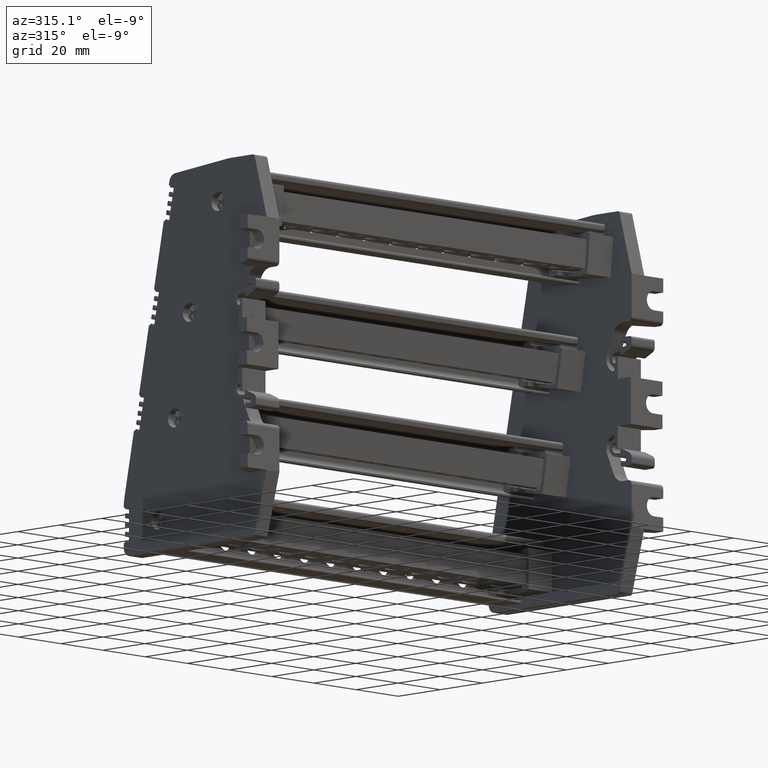
[diagram: clean part render]
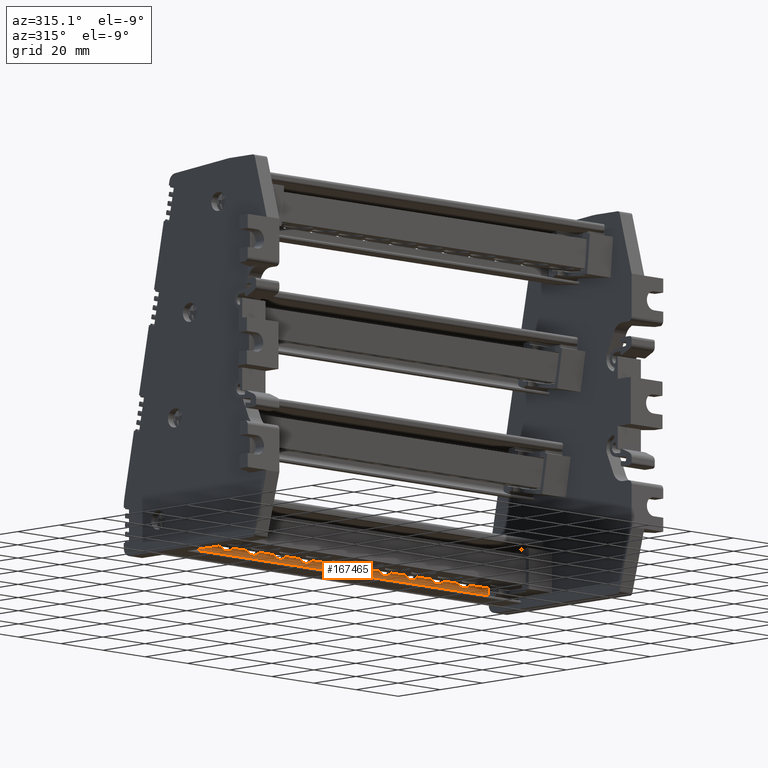
[diagram: same view with one face highlighted and labeled with its STEP entity id]
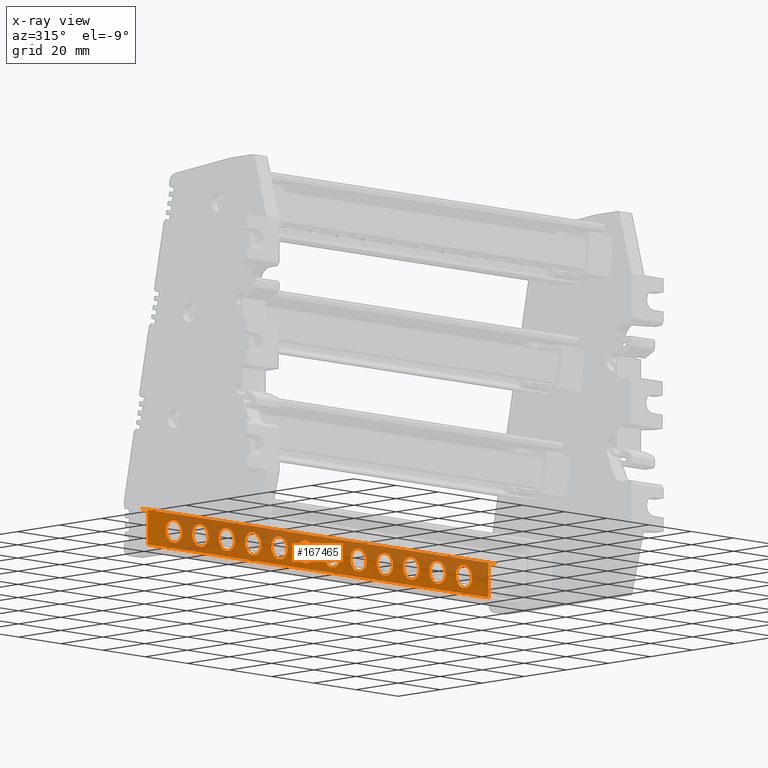
[diagram: x-ray of the same camera — body ghosted, the highlighted face saturated]
A machine part, auxiliary view. The second image highlights one B-rep face of the part: STEP entity #167465.
The next image is the same camera in x-ray: the body ghosted, the highlighted face saturated — about 54% of this face is hidden behind the body in this view.
In plain terms, the highlighted planar face has unit normal (0, 1, -0).
Its self-contained STEP definition (entity closure, byte-faithful):
#21044 = CARTESIAN_POINT ( 'NONE',  ( -1357.412608706442100, 747.1409875838509200, 2244.662420187665700 ) ) ;
#30431 = B_SPLINE_CURVE_WITH_KNOTS ( 'NONE', 3,
 ( #179531, #179475, #179469, #179495, #179559, #179490, #179536, #179538, #179503, #179510 ),
 .UNSPECIFIED., .F., .F.,
 ( 4, 2, 2, 2, 4 ),
 ( 0.5000000000000000000, 0.6250000000000000000, 0.7500000000000000000, 0.8750000000000000000, 1.000000000000000000 ),
 .UNSPECIFIED. ) ;
#30443 = B_SPLINE_CURVE_WITH_KNOTS ( 'NONE', 3,
 ( #179631, #179636, #179668, #179571, #179673, #179580, #179581, #179666, #179654, #179674 ),
 .UNSPECIFIED., .F., .F.,
 ( 4, 2, 2, 2, 4 ),
 ( 0.0000000000000000000, 0.1249999999999954300, 0.2499999999999908700, 0.3749999999999862900, 0.4999999999999817400 ),
 .UNSPECIFIED. ) ;
#30451 = B_SPLINE_CURVE_WITH_KNOTS ( 'NONE', 3,
 ( #177394, #177411, #177386, #177595, #177434, #177422, #177599, #177448, #177430, #177437 ),
 .UNSPECIFIED., .F., .F.,
 ( 4, 2, 2, 2, 4 ),
 ( 0.5000000000000000000, 0.6250000000000000000, 0.7500000000000000000, 0.8750000000000000000, 1.000000000000000000 ),
 .UNSPECIFIED. ) ;
#30454 = B_SPLINE_CURVE_WITH_KNOTS ( 'NONE', 3,
 ( #177458, #177568, #177469, #177481, #177461, #177561, #177580, #177487, #177426, #177583, #177404, #177398, #177509, #177490, #177477, #177390, #177570, #177382 ),
 .UNSPECIFIED., .F., .F.,
 ( 4, 2, 2, 2, 2, 2, 2, 2, 4 ),
 ( 0.0000000000000000000, 0.1250000000000000000, 0.2500000000000000000, 0.3750000000000000000, 0.5000000000000000000, 0.6250000000000000000, 0.7500000000000000000, 0.8750000000000000000, 1.000000000000000000 ),
 .UNSPECIFIED. ) ;
#30456 = B_SPLINE_CURVE_WITH_KNOTS ( 'NONE', 3,
 ( #179003, #179037, #179033, #179040, #179041, #179046, #179032, #179034, #179043, #179023 ),
 .UNSPECIFIED., .F., .F.,
 ( 4, 2, 2, 2, 4 ),
 ( 0.5000000000000000000, 0.6250000000000000000, 0.7500000000000000000, 0.8750000000000000000, 1.000000000000000000 ),
 .UNSPECIFIED. ) ;
#30472 = B_SPLINE_CURVE_WITH_KNOTS ( 'NONE', 3,
 ( #179030, #179052, #179008, #179021, #179028, #179036, #179005, #179010, #179006, #179007 ),
 .UNSPECIFIED., .F., .F.,
 ( 4, 2, 2, 2, 4 ),
 ( 0.0000000000000000000, 0.1249999999999908700, 0.2499999999999817400, 0.3749999999999725800, 0.4999999999999634700 ),
 .UNSPECIFIED. ) ;
#30500 = B_SPLINE_CURVE_WITH_KNOTS ( 'NONE', 3,
 ( #177603, #177484, #177473, #177573, #177576, #177587, #177606, #177445, #177501, #177505 ),
 .UNSPECIFIED., .F., .F.,
 ( 4, 2, 2, 2, 4 ),
 ( 0.0000000000000000000, 0.1249999999999954300, 0.2499999999999908700, 0.3749999999999862900, 0.4999999999999817400 ),
 .UNSPECIFIED. ) ;
#30505 = B_SPLINE_CURVE_WITH_KNOTS ( 'NONE', 3,
 ( #179812, #179803, #179821, #179818, #179805, #179796, #179866, #179897, #179797, #179872, #179878, #179807, #179899, #179798, #179854, #179893, #179834, #179868 ),
 .UNSPECIFIED., .F., .F.,
 ( 4, 2, 2, 2, 2, 2, 2, 2, 4 ),
 ( 0.0000000000000000000, 0.1250000000000000000, 0.2500000000000000000, 0.3750000000000000000, 0.5000000000000000000, 0.6250000000000000000, 0.7500000000000000000, 0.8750000000000000000, 1.000000000000000000 ),
 .UNSPECIFIED. ) ;
#30508 = B_SPLINE_CURVE_WITH_KNOTS ( 'NONE', 3,
 ( #178110, #178101, #178077, #178192, #178233, #178090, #178200, #178210, #178105, #178218 ),
 .UNSPECIFIED., .F., .F.,
 ( 4, 2, 2, 2, 4 ),
 ( 0.0000000000000000000, 0.1249999999999954300, 0.2499999999999908700, 0.3749999999999862900, 0.4999999999999817400 ),
 .UNSPECIFIED. ) ;
#30531 = B_SPLINE_CURVE_WITH_KNOTS ( 'NONE', 3,
 ( #179688, #179746, #179756, #179694, #179707, #179724, #179696, #179726, #179758, #179717, #179772, #179698, #179759, #179711, #179700, #179713, #179765, #179767 ),
 .UNSPECIFIED., .F., .F.,
 ( 4, 2, 2, 2, 2, 2, 2, 2, 4 ),
 ( 0.0000000000000000000, 0.1250000000000000000, 0.2500000000000000000, 0.3750000000000000000, 0.5000000000000000000, 0.6250000000000000000, 0.7500000000000000000, 0.8750000000000000000, 1.000000000000000000 ),
 .UNSPECIFIED. ) ;
#30536 = B_SPLINE_CURVE_WITH_KNOTS ( 'NONE', 3,
 ( #179182, #179185, #179299, #179320, #179282, #179301, #179329, #179331, #179333, #179394 ),
 .UNSPECIFIED., .F., .F.,
 ( 4, 2, 2, 2, 4 ),
 ( 0.5000000000000000000, 0.6250000000000000000, 0.7500000000000000000, 0.8750000000000000000, 1.000000000000000000 ),
 .UNSPECIFIED. ) ;
#30544 = B_SPLINE_CURVE_WITH_KNOTS ( 'NONE', 3,
 ( #177352, #177260, #177193, #177363, #177179, #177171, #177281, #177264, #177267, #177164, #177348, #177374, #177367, #177300, #177311, #177220, #177315, #177209 ),
 .UNSPECIFIED., .F., .F.,
 ( 4, 2, 2, 2, 2, 2, 2, 2, 4 ),
 ( 0.0000000000000000000, 0.1250000000000000000, 0.2500000000000000000, 0.3750000000000000000, 0.5000000000000000000, 0.6250000000000000000, 0.7500000000000000000, 0.8750000000000000000, 1.000000000000000000 ),
 .UNSPECIFIED. ) ;
#30585 = B_SPLINE_CURVE_WITH_KNOTS ( 'NONE', 3,
 ( #178667, #178725, #178904, #178892, #178866, #178893, #178870, #178927, #178910, #178929 ),
 .UNSPECIFIED., .F., .F.,
 ( 4, 2, 2, 2, 4 ),
 ( 0.0000000000000000000, 0.1249999999999908700, 0.2499999999999817400, 0.3749999999999725800, 0.4999999999999634700 ),
 .UNSPECIFIED. ) ;
#30618 = B_SPLINE_CURVE_WITH_KNOTS ( 'NONE', 3,
 ( #178498, #178433, #178490, #178504, #178508, #178394, #178404, #178406, #178410, #178413 ),
 .UNSPECIFIED., .F., .F.,
 ( 4, 2, 2, 2, 4 ),
 ( 0.0000000000000000000, 0.1249999999999954300, 0.2499999999999908700, 0.3749999999999862900, 0.4999999999999817400 ),
 .UNSPECIFIED. ) ;
#30647 = B_SPLINE_CURVE_WITH_KNOTS ( 'NONE', 3,
 ( #178449, #178451, #178419, #178485, #178477, #178422, #178479, #178392, #178428, #178494 ),
 .UNSPECIFIED., .F., .F.,
 ( 4, 2, 2, 2, 4 ),
 ( 0.5000000000000000000, 0.6250000000000000000, 0.7500000000000000000, 0.8750000000000000000, 1.000000000000000000 ),
 .UNSPECIFIED. ) ;
#30659 = B_SPLINE_CURVE_WITH_KNOTS ( 'NONE', 3,
 ( #178713, #178702, #178656, #178735, #178629, #178705, #178707, #178709, #178721, #178727 ),
 .UNSPECIFIED., .F., .F.,
 ( 4, 2, 2, 2, 4 ),
 ( 0.5000000000000000000, 0.6250000000000000000, 0.7500000000000000000, 0.8750000000000000000, 1.000000000000000000 ),
 .UNSPECIFIED. ) ;
#30698 = B_SPLINE_CURVE_WITH_KNOTS ( 'NONE', 3,
 ( #178642, #178633, #178655, #178635, #178704, #178676, #178700, #178711, #178738, #178740 ),
 .UNSPECIFIED., .F., .F.,
 ( 4, 2, 2, 2, 4 ),
 ( 0.5000000000000000000, 0.6250000000000000000, 0.7500000000000000000, 0.8750000000000000000, 1.000000000000000000 ),
 .UNSPECIFIED. ) ;
#30711 = B_SPLINE_CURVE_WITH_KNOTS ( 'NONE', 3,
 ( #178487, #178502, #178572, #178554, #178574, #178549, #178524, #178542, #178564, #178576, #178551, #178600, #178578, #178522, #178517, #178536, #178518, #178593 ),
 .UNSPECIFIED., .F., .F.,
 ( 4, 2, 2, 2, 2, 2, 2, 2, 4 ),
 ( 0.0000000000000000000, 0.1250000000000000000, 0.2500000000000000000, 0.3750000000000000000, 0.5000000000000000000, 0.6250000000000000000, 0.7500000000000000000, 0.8750000000000000000, 1.000000000000000000 ),
 .UNSPECIFIED. ) ;
#30716 = B_SPLINE_CURVE_WITH_KNOTS ( 'NONE', 3,
 ( #178757, #178798, #178780, #178856, #178763, #178835, #178839, #178759, #178761, #178774 ),
 .UNSPECIFIED., .F., .F.,
 ( 4, 2, 2, 2, 4 ),
 ( 0.0000000000000000000, 0.1249999999999908700, 0.2499999999999817400, 0.3749999999999725800, 0.4999999999999634700 ),
 .UNSPECIFIED. ) ;
#37054 = CARTESIAN_POINT ( 'NONE',  ( -1246.910428931360000, 747.1409875838347700, 2250.659019234310600 ) ) ;
#42223 = B_SPLINE_CURVE_WITH_KNOTS ( 'NONE', 3,
 ( #143264, #143290, #143291, #143284, #143294, #143270, #143238, #143235, #143303, #143230 ),
 .UNSPECIFIED., .F., .F.,
 ( 4, 2, 2, 2, 4 ),
 ( 0.0000000000000000000, 0.1250000000000000000, 0.2500000000000000000, 0.3750000000000000000, 0.5000000000000000000 ),
 .UNSPECIFIED. ) ;
#42232 = B_SPLINE_CURVE_WITH_KNOTS ( 'NONE', 3,
 ( #143296, #143257, #143308, #143315, #143283, #143276, #143263, #143299, #143266, #143248, #143268, #143310, #143311, #143313, #143322, #143277, #143325, #143340 ),
 .UNSPECIFIED., .F., .F.,
 ( 4, 2, 2, 2, 2, 2, 2, 2, 4 ),
 ( 0.0000000000000000000, 0.1250000000000000000, 0.2500000000000000000, 0.3750000000000000000, 0.5000000000000000000, 0.6250000000000000000, 0.7500000000000000000, 0.8750000000000000000, 1.000000000000000000 ),
 .UNSPECIFIED. ) ;
#42235 = B_SPLINE_CURVE_WITH_KNOTS ( 'NONE', 3,
 ( #143274, #143347, #143400, #143438, #143342, #143455, #143409, #143336, #143433, #143356 ),
 .UNSPECIFIED., .F., .F.,
 ( 4, 2, 2, 2, 4 ),
 ( 0.0000000000000000000, 0.1250000000000000000, 0.2500000000000000000, 0.3750000000000000000, 0.5000000000000000000 ),
 .UNSPECIFIED. ) ;
#42240 = B_SPLINE_CURVE_WITH_KNOTS ( 'NONE', 3,
 ( #143324, #143233, #143461, #143343, #143359, #143458, #143352, #143361, #143355, #143382 ),
 .UNSPECIFIED., .F., .F.,
 ( 4, 2, 2, 2, 4 ),
 ( 0.4999999999999817400, 0.6249999999999862300, 0.7499999999999909000, 0.8749999999999953400, 1.000000000000000000 ),
 .UNSPECIFIED. ) ;
#42251 = B_SPLINE_CURVE_WITH_KNOTS ( 'NONE', 3,
 ( #143374, #143332, #143390, #143411, #143420, #143381, #143414, #143370, #143442, #143422 ),
 .UNSPECIFIED., .F., .F.,
 ( 4, 2, 2, 2, 4 ),
 ( 0.0000000000000000000, 0.1250000000000000000, 0.2500000000000000000, 0.3750000000000000000, 0.5000000000000000000 ),
 .UNSPECIFIED. ) ;
#42268 = B_SPLINE_CURVE_WITH_KNOTS ( 'NONE', 3,
 ( #143513, #143538, #143555, #143552, #143582, #143590, #143561, #143566, #143569, #143583 ),
 .UNSPECIFIED., .F., .F.,
 ( 4, 2, 2, 2, 4 ),
 ( 0.4999999999999634700, 0.6249999999999725800, 0.7499999999999817900, 0.8749999999999909000, 1.000000000000000000 ),
 .UNSPECIFIED. ) ;
#42270 = B_SPLINE_CURVE_WITH_KNOTS ( 'NONE', 3,
 ( #143673, #143649, #143709, #143760, #143777, #143652, #143732, #143689, #143625, #143712, #143729, #143738, #143698, #143735, #143691, #143766, #143740, #143668 ),
 .UNSPECIFIED., .F., .F.,
 ( 4, 2, 2, 2, 2, 2, 2, 2, 4 ),
 ( 0.0000000000000000000, 0.1250000000000000000, 0.2500000000000000000, 0.3750000000000000000, 0.5000000000000000000, 0.6250000000000000000, 0.7500000000000000000, 0.8750000000000000000, 1.000000000000000000 ),
 .UNSPECIFIED. ) ;
#42286 = B_SPLINE_CURVE_WITH_KNOTS ( 'NONE', 3,
 ( #143844, #143788, #143864, #143839, #143805, #143782, #143817, #143822, #143854, #143867, #143870, #143872, #143937, #143888, #143890, #143879, #143900, #143893 ),
 .UNSPECIFIED., .F., .F.,
 ( 4, 2, 2, 2, 2, 2, 2, 2, 4 ),
 ( 0.0000000000000000000, 0.1250000000000000000, 0.2500000000000000000, 0.3750000000000000000, 0.5000000000000000000, 0.6250000000000000000, 0.7500000000000000000, 0.8750000000000000000, 1.000000000000000000 ),
 .UNSPECIFIED. ) ;
#42295 = B_SPLINE_CURVE_WITH_KNOTS ( 'NONE', 3,
 ( #144108, #144111, #144408, #144291, #144398, #144329, #144346, #144286, #144366, #144269 ),
 .UNSPECIFIED., .F., .F.,
 ( 4, 2, 2, 2, 4 ),
 ( 0.0000000000000000000, 0.1250000000000000000, 0.2500000000000000000, 0.3750000000000000000, 0.5000000000000000000 ),
 .UNSPECIFIED. ) ;
#42301 = B_SPLINE_CURVE_WITH_KNOTS ( 'NONE', 3,
 ( #143662, #143702, #143628, #143658, #143707, #143665, #143763, #143676, #143769, #143659 ),
 .UNSPECIFIED., .F., .F.,
 ( 4, 2, 2, 2, 4 ),
 ( 0.0000000000000000000, 0.1250000000000000000, 0.2500000000000000000, 0.3750000000000000000, 0.5000000000000000000 ),
 .UNSPECIFIED. ) ;
#42320 = B_SPLINE_CURVE_WITH_KNOTS ( 'NONE', 3,
 ( #143725, #143630, #143774, #143745, #143750, #143753, #143756, #143758, #143632, #143655 ),
 .UNSPECIFIED., .F., .F.,
 ( 4, 2, 2, 2, 4 ),
 ( 0.0000000000000000000, 0.1250000000000000000, 0.2500000000000000000, 0.3750000000000000000, 0.5000000000000000000 ),
 .UNSPECIFIED. ) ;
#42329 = B_SPLINE_CURVE_WITH_KNOTS ( 'NONE', 3,
 ( #143824, #143808, #143905, #143908, #143910, #143785, #143919, #143922, #143925, #143928 ),
 .UNSPECIFIED., .F., .F.,
 ( 4, 2, 2, 2, 4 ),
 ( 0.0000000000000000000, 0.1250000000000000000, 0.2500000000000000000, 0.3750000000000000000, 0.5000000000000000000 ),
 .UNSPECIFIED. ) ;
#42332 = B_SPLINE_CURVE_WITH_KNOTS ( 'NONE', 3,
 ( #143971, #144020, #144066, #143995, #143956, #143989, #143966, #144030, #144077, #144092 ),
 .UNSPECIFIED., .F., .F.,
 ( 4, 2, 2, 2, 4 ),
 ( 0.4999999999999817400, 0.6249999999999862300, 0.7499999999999909000, 0.8749999999999953400, 1.000000000000000000 ),
 .UNSPECIFIED. ) ;
#42349 = B_SPLINE_CURVE_WITH_KNOTS ( 'NONE', 3,
 ( #143917, #144095, #143974, #144052, #144007, #143941, #144042, #144047, #144056, #144022 ),
 .UNSPECIFIED., .F., .F.,
 ( 4, 2, 2, 2, 4 ),
 ( 0.4999999999999634700, 0.6249999999999725800, 0.7499999999999817900, 0.8749999999999909000, 1.000000000000000000 ),
 .UNSPECIFIED. ) ;
#42355 = B_SPLINE_CURVE_WITH_KNOTS ( 'NONE', 3,
 ( #144173, #144212, #144176, #144189, #144106, #144191, #144194, #144116, #144097, #144134, #144137, #144139, #144202, #144217, #144220, #144100, #144222, #144225 ),
 .UNSPECIFIED., .F., .F.,
 ( 4, 2, 2, 2, 2, 2, 2, 2, 4 ),
 ( 0.0000000000000000000, 0.1250000000000000000, 0.2500000000000000000, 0.3750000000000000000, 0.5000000000000000000, 0.6250000000000000000, 0.7500000000000000000, 0.8750000000000000000, 1.000000000000000000 ),
 .UNSPECIFIED. ) ;
#42384 = B_SPLINE_CURVE_WITH_KNOTS ( 'NONE', 3,
 ( #144685, #144791, #144742, #144739, #144840, #144731, #144822, #144850, #144859, #144815 ),
 .UNSPECIFIED., .F., .F.,
 ( 4, 2, 2, 2, 4 ),
 ( 0.4999999999999817400, 0.6249999999999862300, 0.7499999999999909000, 0.8749999999999953400, 1.000000000000000000 ),
 .UNSPECIFIED. ) ;
#42406 = B_SPLINE_CURVE_WITH_KNOTS ( 'NONE', 3,
 ( #144015, #144068, #143961, #144205, #144169, #144250, #144255, #144153, #144148, #144124, #144186, #144160, #144240, #144179, #144197, #144128, #144142, #144150 ),
 .UNSPECIFIED., .F., .F.,
 ( 4, 2, 2, 2, 2, 2, 2, 2, 4 ),
 ( 0.0000000000000000000, 0.1250000000000000000, 0.2500000000000000000, 0.3750000000000000000, 0.5000000000000000000, 0.6250000000000000000, 0.7500000000000000000, 0.8750000000000000000, 1.000000000000000000 ),
 .UNSPECIFIED. ) ;
#42408 = B_SPLINE_CURVE_WITH_KNOTS ( 'NONE', 3,
 ( #143563, #143500, #143503, #143483, #143495, #143471, #143532, #143505, #143478, #143530 ),
 .UNSPECIFIED., .F., .F.,
 ( 4, 2, 2, 2, 4 ),
 ( 0.4999999999999817400, 0.6249999999999862300, 0.7499999999999909000, 0.8749999999999953400, 1.000000000000000000 ),
 .UNSPECIFIED. ) ;
#42416 = B_SPLINE_CURVE_WITH_KNOTS ( 'NONE', 3,
 ( #143833, #143792, #143820, #143896, #143836, #143857, #143811, #143841, #143860, #143849 ),
 .UNSPECIFIED., .F., .F.,
 ( 4, 2, 2, 2, 4 ),
 ( 0.4999999999999634700, 0.6249999999999725800, 0.7499999999999817900, 0.8749999999999909000, 1.000000000000000000 ),
 .UNSPECIFIED. ) ;
#48107 = CARTESIAN_POINT ( 'NONE',  ( -1413.910428931362000, 747.1409875838354500, 2250.659019234311000 ) ) ;
#53031 = VECTOR ( 'NONE', #144025, 1000.000000000000000 ) ;
#53107 = VECTOR ( 'NONE', #144118, 1000.000000000000000 ) ;
#53132 = VECTOR ( 'NONE', #143379, 1000.000000000000000 ) ;
#53144 = VECTOR ( 'NONE', #143780, 1000.000000000000000 ) ;
#54546 = ORIENTED_EDGE ( 'NONE', *, *, #138281, .F. ) ;
#54565 = ORIENTED_EDGE ( 'NONE', *, *, #117149, .F. ) ;
#54575 = ORIENTED_EDGE ( 'NONE', *, *, #117104, .F. ) ;
#54588 = ORIENTED_EDGE ( 'NONE', *, *, #117098, .F. ) ;
#54590 = ORIENTED_EDGE ( 'NONE', *, *, #138272, .F. ) ;
#54621 = ORIENTED_EDGE ( 'NONE', *, *, #124305, .F. ) ;
#54623 = ORIENTED_EDGE ( 'NONE', *, *, #124266, .T. ) ;
#54631 = ORIENTED_EDGE ( 'NONE', *, *, #124358, .F. ) ;
#54655 = ORIENTED_EDGE ( 'NONE', *, *, #138567, .F. ) ;
#54660 = ORIENTED_EDGE ( 'NONE', *, *, #138598, .F. ) ;
#54662 = ORIENTED_EDGE ( 'NONE', *, *, #138560, .F. ) ;
#54664 = ORIENTED_EDGE ( 'NONE', *, *, #138475, .F. ) ;
#54666 = ORIENTED_EDGE ( 'NONE', *, *, #138495, .F. ) ;
#54667 = ORIENTED_EDGE ( 'NONE', *, *, #138485, .F. ) ;
#54671 = ORIENTED_EDGE ( 'NONE', *, *, #138607, .F. ) ;
#54675 = ORIENTED_EDGE ( 'NONE', *, *, #117141, .F. ) ;
#54676 = ORIENTED_EDGE ( 'NONE', *, *, #117109, .F. ) ;
#54678 = ORIENTED_EDGE ( 'NONE', *, *, #138520, .F. ) ;
#54680 = ORIENTED_EDGE ( 'NONE', *, *, #117074, .F. ) ;
#54682 = ORIENTED_EDGE ( 'NONE', *, *, #138458, .F. ) ;
#54686 = ORIENTED_EDGE ( 'NONE', *, *, #117036, .F. ) ;
#54687 = ORIENTED_EDGE ( 'NONE', *, *, #138587, .F. ) ;
#54689 = ORIENTED_EDGE ( 'NONE', *, *, #117085, .F. ) ;
#54691 = ORIENTED_EDGE ( 'NONE', *, *, #117031, .F. ) ;
#54695 = ORIENTED_EDGE ( 'NONE', *, *, #117066, .F. ) ;
#54700 = ORIENTED_EDGE ( 'NONE', *, *, #117102, .F. ) ;
#54709 = ORIENTED_EDGE ( 'NONE', *, *, #138424, .F. ) ;
#54715 = ORIENTED_EDGE ( 'NONE', *, *, #138571, .F. ) ;
#54717 = ORIENTED_EDGE ( 'NONE', *, *, #138488, .F. ) ;
#54719 = ORIENTED_EDGE ( 'NONE', *, *, #117143, .F. ) ;
#54722 = ORIENTED_EDGE ( 'NONE', *, *, #117038, .F. ) ;
#54724 = ORIENTED_EDGE ( 'NONE', *, *, #117034, .F. ) ;
#54726 = ORIENTED_EDGE ( 'NONE', *, *, #138414, .F. ) ;
#54730 = ORIENTED_EDGE ( 'NONE', *, *, #117061, .F. ) ;
#54732 = ORIENTED_EDGE ( 'NONE', *, *, #138368, .F. ) ;
#54736 = ORIENTED_EDGE ( 'NONE', *, *, #117130, .F. ) ;
#54738 = ORIENTED_EDGE ( 'NONE', *, *, #124579, .T. ) ;
#54740 = ORIENTED_EDGE ( 'NONE', *, *, #138618, .F. ) ;
#54744 = ORIENTED_EDGE ( 'NONE', *, *, #138445, .F. ) ;
#54747 = ORIENTED_EDGE ( 'NONE', *, *, #117128, .F. ) ;
#54748 = ORIENTED_EDGE ( 'NONE', *, *, #117081, .F. ) ;
#54756 = ORIENTED_EDGE ( 'NONE', *, *, #117220, .F. ) ;
#54758 = ORIENTED_EDGE ( 'NONE', *, *, #117083, .F. ) ;
#54762 = ORIENTED_EDGE ( 'NONE', *, *, #117025, .F. ) ;
#54765 = ORIENTED_EDGE ( 'NONE', *, *, #117115, .F. ) ;
#54769 = ORIENTED_EDGE ( 'NONE', *, *, #117044, .F. ) ;
#67257 = AXIS2_PLACEMENT_3D ( 'NONE', #90563, #90571, #90606 ) ;
#68560 = CARTESIAN_POINT ( 'NONE',  ( -1282.412608706442100, 747.1409875838508000, 2244.662420187665700 ) ) ;
#68569 = CARTESIAN_POINT ( 'NONE',  ( -1246.910428931358900, 747.1409875838348900, 2250.526436650469300 ) ) ;
#68579 = CARTESIAN_POINT ( 'NONE',  ( -1411.081890418600300, 747.1409875838348900, 2238.859022573721600 ) ) ;
#68658 = CARTESIAN_POINT ( 'NONE',  ( -1294.912608706442100, 747.1409875838510300, 2244.662420187665700 ) ) ;
#68722 = CARTESIAN_POINT ( 'NONE',  ( -1411.081890418600300, 747.1409875838347700, 2250.526436650469300 ) ) ;
#68750 = CARTESIAN_POINT ( 'NONE',  ( -1319.912608706442600, 747.1409875838510300, 2244.662420187665700 ) ) ;
#68775 = CARTESIAN_POINT ( 'NONE',  ( -1249.738967444120800, 747.1409875838346600, 2250.526436650469300 ) ) ;
#68786 = CARTESIAN_POINT ( 'NONE',  ( -1344.912608706442100, 747.1409875838510300, 2244.662420187665700 ) ) ;
#68801 = CARTESIAN_POINT ( 'NONE',  ( -1413.910428931364100, 747.1409875838348900, 2250.526436650469300 ) ) ;
#68807 = CARTESIAN_POINT ( 'NONE',  ( -1307.412608706442400, 747.1409875838509200, 2244.662420187665700 ) ) ;
#68810 = CARTESIAN_POINT ( 'NONE',  ( -1249.738967444120800, 747.1409875838346600, 2238.859022484094100 ) ) ;
#68820 = CARTESIAN_POINT ( 'NONE',  ( -1332.412608706442800, 747.1409875838509200, 2244.662420187665700 ) ) ;
#69795 = CARTESIAN_POINT ( 'NONE',  ( -1290.152249156296000, 747.1409875838511400, 2244.662420187665700 ) ) ;
#69801 = CARTESIAN_POINT ( 'NONE',  ( -1348.782428931369400, 747.1409887655047400, 2240.792599942113600 ) ) ;
#69824 = CARTESIAN_POINT ( 'NONE',  ( -1298.782428931369200, 747.1409887655047400, 2240.792599942113600 ) ) ;
#69836 = CARTESIAN_POINT ( 'NONE',  ( -1340.152249156295700, 747.1409875838511400, 2244.662420187665700 ) ) ;
#69845 = CARTESIAN_POINT ( 'NONE',  ( -1361.282428931369200, 747.1409864021920800, 2248.532240391967700 ) ) ;
#69865 = CARTESIAN_POINT ( 'NONE',  ( -1286.282428931368900, 747.1409887655047400, 2240.792599942113600 ) ) ;
#69868 = CARTESIAN_POINT ( 'NONE',  ( -1273.782428931369400, 747.1409866386466100, 2248.532420162785500 ) ) ;
#69871 = CARTESIAN_POINT ( 'NONE',  ( -1327.652249156295700, 747.1409875838510300, 2244.662420187665700 ) ) ;
#69877 = CARTESIAN_POINT ( 'NONE',  ( -1386.282428931369200, 747.1409866386695700, 2248.532420162785500 ) ) ;
#69882 = CARTESIAN_POINT ( 'NONE',  ( -1365.152249156296000, 747.1409875838511400, 2244.662420187665700 ) ) ;
#69887 = CARTESIAN_POINT ( 'NONE',  ( -1286.282428931368900, 747.1409864021918600, 2248.532240391967700 ) ) ;
#69890 = CARTESIAN_POINT ( 'NONE',  ( -1311.282428931369400, 747.1409887655047400, 2240.792599942114100 ) ) ;
#69898 = CARTESIAN_POINT ( 'NONE',  ( -1261.282428931368700, 747.1409866386465000, 2248.532420162785500 ) ) ;
#69906 = CARTESIAN_POINT ( 'NONE',  ( -1261.282428931368700, 747.1409899473014800, 2240.792420187668100 ) ) ;
#69908 = CARTESIAN_POINT ( 'NONE',  ( -1311.282428931368900, 747.1409864021919700, 2248.532240391966800 ) ) ;
#69913 = CARTESIAN_POINT ( 'NONE',  ( -1361.282428931369200, 747.1409887655048600, 2240.792599942113600 ) ) ;
#69925 = CARTESIAN_POINT ( 'NONE',  ( -1336.282428931369400, 747.1409864021920800, 2248.532240391966800 ) ) ;
#69936 = CARTESIAN_POINT ( 'NONE',  ( -1298.782428931369200, 747.1409864021920800, 2248.532240391967700 ) ) ;
#69945 = CARTESIAN_POINT ( 'NONE',  ( -1373.782428931368900, 747.1409866386695700, 2248.532420162785500 ) ) ;
#69949 = CARTESIAN_POINT ( 'NONE',  ( -1323.782428931369200, 747.1409864021920800, 2248.532240391966800 ) ) ;
#69952 = CARTESIAN_POINT ( 'NONE',  ( -1352.652249156295700, 747.1409875838510300, 2244.662420187665700 ) ) ;
#69959 = CARTESIAN_POINT ( 'NONE',  ( -1348.782428931368900, 747.1409864021920800, 2248.532240391967700 ) ) ;
#69965 = CARTESIAN_POINT ( 'NONE',  ( -1398.782428931369400, 747.1409866386695700, 2248.532420162785500 ) ) ;
#69967 = CARTESIAN_POINT ( 'NONE',  ( -1323.782428931369200, 747.1409887655047400, 2240.792599942114100 ) ) ;
#69988 = CARTESIAN_POINT ( 'NONE',  ( -1302.652249156296000, 747.1409875838510300, 2244.662420187665700 ) ) ;
#70005 = CARTESIAN_POINT ( 'NONE',  ( -1336.282428931369400, 747.1409887655047400, 2240.792599942114100 ) ) ;
#70016 = CARTESIAN_POINT ( 'NONE',  ( -1315.152249156295500, 747.1409875838511400, 2244.662420187665700 ) ) ;
#70025 = CARTESIAN_POINT ( 'NONE',  ( -1273.782428931369200, 747.1409899473013600, 2240.792420187667600 ) ) ;
#70099 = CARTESIAN_POINT ( 'NONE',  ( -1373.782428931369200, 747.1409899473156900, 2240.792420187668500 ) ) ;
#70161 = CARTESIAN_POINT ( 'NONE',  ( -1386.282428931368900, 747.1409899473158000, 2240.792420187668100 ) ) ;
#70176 = CARTESIAN_POINT ( 'NONE',  ( -1398.782428931369400, 747.1409899473160300, 2240.792420187668500 ) ) ;
#81352 = VERTEX_POINT ( 'NONE', #68569 ) ;
#81354 = VERTEX_POINT ( 'NONE', #68579 ) ;
#81358 = VERTEX_POINT ( 'NONE', #68560 ) ;
#81376 = VERTEX_POINT ( 'NONE', #68658 ) ;
#81386 = VERTEX_POINT ( 'NONE', #68810 ) ;
#81407 = VERTEX_POINT ( 'NONE', #68801 ) ;
#81415 = VERTEX_POINT ( 'NONE', #68750 ) ;
#81419 = VERTEX_POINT ( 'NONE', #68722 ) ;
#81421 = VERTEX_POINT ( 'NONE', #68775 ) ;
#81435 = VERTEX_POINT ( 'NONE', #68807 ) ;
#81459 = VERTEX_POINT ( 'NONE', #68786 ) ;
#81467 = VERTEX_POINT ( 'NONE', #68820 ) ;
#90504 = FACE_OUTER_BOUND ( 'NONE', #175544, .T. ) ;
#90506 = FACE_BOUND ( 'NONE', #175628, .T. ) ;
#90509 = FACE_BOUND ( 'NONE', #175750, .T. ) ;
#90510 = FACE_BOUND ( 'NONE', #175526, .T. ) ;
#90515 = FACE_BOUND ( 'NONE', #175676, .T. ) ;
#90516 = FACE_BOUND ( 'NONE', #175524, .T. ) ;
#90529 = FACE_BOUND ( 'NONE', #175718, .T. ) ;
#90530 = PLANE ( 'NONE',  #67257 ) ;
#90531 = FACE_BOUND ( 'NONE', #175573, .T. ) ;
#90539 = FACE_BOUND ( 'NONE', #175668, .T. ) ;
#90540 = FACE_BOUND ( 'NONE', #175768, .T. ) ;
#90545 = FACE_BOUND ( 'NONE', #175580, .T. ) ;
#90551 = FACE_BOUND ( 'NONE', #175575, .T. ) ;
#90559 = FACE_BOUND ( 'NONE', #175642, .T. ) ;
#90563 = CARTESIAN_POINT ( 'NONE',  ( -1328.282428931368900, 747.1409875838348900, 2221.377311736619000 ) ) ;
#90571 = DIRECTION ( 'NONE',  ( 4.318931644915900200E-015, 1.000000000000000000, -9.409140345456436900E-015 ) ) ;
#90606 = DIRECTION ( 'NONE',  ( 0.0000000000000000000, 9.409140345456436900E-015, 1.000000000000000000 ) ) ;
#102192 = VERTEX_POINT ( 'NONE', #69824 ) ;
#102201 = VERTEX_POINT ( 'NONE', #69836 ) ;
#102210 = VERTEX_POINT ( 'NONE', #69795 ) ;
#102222 = VERTEX_POINT ( 'NONE', #69801 ) ;
#102234 = VERTEX_POINT ( 'NONE', #69845 ) ;
#102249 = VERTEX_POINT ( 'NONE', #69949 ) ;
#102258 = VERTEX_POINT ( 'NONE', #69871 ) ;
#102294 = VERTEX_POINT ( 'NONE', #69913 ) ;
#102297 = VERTEX_POINT ( 'NONE', #69936 ) ;
#102300 = VERTEX_POINT ( 'NONE', #69890 ) ;
#102306 = VERTEX_POINT ( 'NONE', #70005 ) ;
#102312 = VERTEX_POINT ( 'NONE', #69988 ) ;
#102318 = VERTEX_POINT ( 'NONE', #69882 ) ;
#102327 = VERTEX_POINT ( 'NONE', #69967 ) ;
#102330 = VERTEX_POINT ( 'NONE', #69908 ) ;
#102336 = VERTEX_POINT ( 'NONE', #69887 ) ;
#102342 = VERTEX_POINT ( 'NONE', #69925 ) ;
#102351 = VERTEX_POINT ( 'NONE', #69865 ) ;
#102357 = VERTEX_POINT ( 'NONE', #70016 ) ;
#102369 = VERTEX_POINT ( 'NONE', #69959 ) ;
#102372 = VERTEX_POINT ( 'NONE', #69952 ) ;
#102384 = VERTEX_POINT ( 'NONE', #69945 ) ;
#102390 = VERTEX_POINT ( 'NONE', #69965 ) ;
#102393 = VERTEX_POINT ( 'NONE', #69898 ) ;
#102399 = VERTEX_POINT ( 'NONE', #69906 ) ;
#102417 = VERTEX_POINT ( 'NONE', #69877 ) ;
#102420 = VERTEX_POINT ( 'NONE', #69868 ) ;
#102438 = VERTEX_POINT ( 'NONE', #70099 ) ;
#102478 = VERTEX_POINT ( 'NONE', #70176 ) ;
#102494 = VERTEX_POINT ( 'NONE', #70161 ) ;
#102500 = VERTEX_POINT ( 'NONE', #70025 ) ;
#102970 = VERTEX_POINT ( 'NONE', #21044 ) ;
#117025 = EDGE_CURVE ( 'NONE', #81415, #102249, #42223, .T. ) ;
#117031 = EDGE_CURVE ( 'NONE', #102438, #102384, #42232, .T. ) ;
#117034 = EDGE_CURVE ( 'NONE', #102351, #81358, #42240, .T. ) ;
#117036 = EDGE_CURVE ( 'NONE', #81376, #102297, #42235, .T. ) ;
#117038 = EDGE_CURVE ( 'NONE', #81358, #102336, #42251, .T. ) ;
#117044 = EDGE_CURVE ( 'NONE', #81419, #81407, #143406, .T. ) ;
#117061 = EDGE_CURVE ( 'NONE', #102327, #81415, #42408, .T. ) ;
#117066 = EDGE_CURVE ( 'NONE', #102222, #81459, #42268, .T. ) ;
#117074 = EDGE_CURVE ( 'NONE', #81421, #81386, #143670, .T. ) ;
#117081 = EDGE_CURVE ( 'NONE', #102399, #102393, #42270, .T. ) ;
#117083 = EDGE_CURVE ( 'NONE', #81459, #102369, #42320, .T. ) ;
#117085 = EDGE_CURVE ( 'NONE', #102970, #102234, #42301, .T. ) ;
#117098 = EDGE_CURVE ( 'NONE', #102300, #81435, #42416, .T. ) ;
#117102 = EDGE_CURVE ( 'NONE', #102494, #102417, #42286, .T. ) ;
#117104 = EDGE_CURVE ( 'NONE', #81467, #102342, #42329, .T. ) ;
#117109 = EDGE_CURVE ( 'NONE', #102192, #81376, #42332, .T. ) ;
#117115 = EDGE_CURVE ( 'NONE', #102306, #81467, #42349, .T. ) ;
#117128 = EDGE_CURVE ( 'NONE', #81354, #81419, #144085, .T. ) ;
#117130 = EDGE_CURVE ( 'NONE', #102500, #102420, #42406, .T. ) ;
#117141 = EDGE_CURVE ( 'NONE', #102478, #102390, #42355, .T. ) ;
#117143 = EDGE_CURVE ( 'NONE', #81352, #81421, #144237, .T. ) ;
#117149 = EDGE_CURVE ( 'NONE', #81435, #102330, #42295, .T. ) ;
#117220 = EDGE_CURVE ( 'NONE', #102294, #102970, #42384, .T. ) ;
#124266 = EDGE_CURVE ( 'NONE', #131529, #131782, #191831, .T. ) ;
#124305 = EDGE_CURVE ( 'NONE', #131529, #81352, #126826, .T. ) ;
#124358 = EDGE_CURVE ( 'NONE', #81407, #131782, #126710, .T. ) ;
#124579 = EDGE_CURVE ( 'NONE', #81354, #81386, #192645, .T. ) ;
#126710 = B_SPLINE_CURVE_WITH_KNOTS ( 'NONE', 3,
 ( #191990, #191954, #192010, #192057 ),
 .UNSPECIFIED., .F., .F.,
 ( 4, 4 ),
 ( 0.0000000000000000000, 1.000000000000000000 ),
 .UNSPECIFIED. ) ;
#126826 = B_SPLINE_CURVE_WITH_KNOTS ( 'NONE', 3,
 ( #191870, #191915, #191872, #191944 ),
 .UNSPECIFIED., .F., .F.,
 ( 4, 4 ),
 ( 0.0000000000000000000, 1.000000000000000000 ),
 .UNSPECIFIED. ) ;
#131529 = VERTEX_POINT ( 'NONE', #37054 ) ;
#131782 = VERTEX_POINT ( 'NONE', #48107 ) ;
#138272 = EDGE_CURVE ( 'NONE', #102330, #102357, #30456, .T. ) ;
#138281 = EDGE_CURVE ( 'NONE', #102357, #102300, #30472, .T. ) ;
#138368 = EDGE_CURVE ( 'NONE', #102369, #102372, #30536, .T. ) ;
#138414 = EDGE_CURVE ( 'NONE', #102234, #102318, #30431, .T. ) ;
#138424 = EDGE_CURVE ( 'NONE', #102312, #102192, #30443, .T. ) ;
#138445 = EDGE_CURVE ( 'NONE', #102384, #102438, #30531, .T. ) ;
#138458 = EDGE_CURVE ( 'NONE', #102420, #102500, #30505, .T. ) ;
#138475 = EDGE_CURVE ( 'NONE', #102390, #102478, #30544, .T. ) ;
#138485 = EDGE_CURVE ( 'NONE', #102336, #102210, #30451, .T. ) ;
#138488 = EDGE_CURVE ( 'NONE', #102318, #102294, #30500, .T. ) ;
#138495 = EDGE_CURVE ( 'NONE', #102393, #102399, #30454, .T. ) ;
#138520 = EDGE_CURVE ( 'NONE', #102258, #102327, #30508, .T. ) ;
#138560 = EDGE_CURVE ( 'NONE', #102297, #102312, #30647, .T. ) ;
#138567 = EDGE_CURVE ( 'NONE', #102210, #102351, #30618, .T. ) ;
#138571 = EDGE_CURVE ( 'NONE', #102417, #102494, #30711, .T. ) ;
#138587 = EDGE_CURVE ( 'NONE', #102342, #102201, #30698, .T. ) ;
#138598 = EDGE_CURVE ( 'NONE', #102249, #102258, #30659, .T. ) ;
#138607 = EDGE_CURVE ( 'NONE', #102372, #102222, #30716, .T. ) ;
#138618 = EDGE_CURVE ( 'NONE', #102201, #102306, #30585, .T. ) ;
#143230 = CARTESIAN_POINT ( 'NONE',  ( -1323.782428931369200, 747.1409864021920800, 2248.532240391966800 ) ) ;
#143233 = CARTESIAN_POINT ( 'NONE',  ( -1285.775870648480300, 747.1409899471744900, 2240.792599962740500 ) ) ;
#143235 = CARTESIAN_POINT ( 'NONE',  ( -1322.769511674644300, 747.1409852820597700, 2248.431519350361700 ) ) ;
#143238 = CARTESIAN_POINT ( 'NONE',  ( -1321.833514015473600, 747.1409855188312600, 2248.043816425583400 ) ) ;
#143248 = CARTESIAN_POINT ( 'NONE',  ( -1369.912428972833600, 747.1409896379258300, 2245.169001997632700 ) ) ;
#143257 = CARTESIAN_POINT ( 'NONE',  ( -1373.275847121404900, 747.1409923107191800, 2240.792420229135100 ) ) ;
#143263 = CARTESIAN_POINT ( 'NONE',  ( -1370.400875644669000, 747.1409911375615100, 2242.713414754516200 ) ) ;
#143264 = CARTESIAN_POINT ( 'NONE',  ( -1319.912608706442600, 747.1409875838510300, 2244.662420187665700 ) ) ;
#143266 = CARTESIAN_POINT ( 'NONE',  ( -1369.912428972833800, 747.1409902566683700, 2244.155838377705100 ) ) ;
#143268 = CARTESIAN_POINT ( 'NONE',  ( -1370.013154713048400, 747.1409893286763700, 2245.675384489286900 ) ) ;
#143270 = CARTESIAN_POINT ( 'NONE',  ( -1321.404243605248900, 747.1409856939989100, 2247.756987107580700 ) ) ;
#143274 = CARTESIAN_POINT ( 'NONE',  ( -1294.912608706442100, 747.1409875838510300, 2244.662420187665700 ) ) ;
#143276 = CARTESIAN_POINT ( 'NONE',  ( -1370.687718284446200, 747.1409913997303000, 2242.284124406848600 ) ) ;
#143277 = CARTESIAN_POINT ( 'NONE',  ( -1372.769464629752100, 747.1409876453885800, 2248.431694405989700 ) ) ;
#143283 = CARTESIAN_POINT ( 'NONE',  ( -1371.404133150547800, 747.1409918372477300, 2241.567709540746800 ) ) ;
#143284 = CARTESIAN_POINT ( 'NONE',  ( -1320.401032693451000, 747.1409863936523800, 2246.611335103561000 ) ) ;
#143290 = CARTESIAN_POINT ( 'NONE',  ( -1319.912608706444000, 747.1409872745044800, 2245.168978470555000 ) ) ;
#143291 = CARTESIAN_POINT ( 'NONE',  ( -1320.013329768673900, 747.1409869652694600, 2245.675337444390600 ) ) ;
#143294 = CARTESIAN_POINT ( 'NONE',  ( -1320.687862011454400, 747.1409861314957700, 2247.040605513785500 ) ) ;
#143296 = CARTESIAN_POINT ( 'NONE',  ( -1373.782428931369200, 747.1409899473156900, 2240.792420187668500 ) ) ;
#143299 = CARTESIAN_POINT ( 'NONE',  ( -1370.013154713047900, 747.1409905659177200, 2243.649455886052700 ) ) ;
#143303 = CARTESIAN_POINT ( 'NONE',  ( -1323.275870648479900, 747.1409852205491700, 2248.532240412590500 ) ) ;
#143308 = CARTESIAN_POINT ( 'NONE',  ( -1372.769464629751800, 747.1409922492060800, 2240.893145969349000 ) ) ;
#143310 = CARTESIAN_POINT ( 'NONE',  ( -1370.400875644669000, 747.1409887570326900, 2246.611425620822000 ) ) ;
#143311 = CARTESIAN_POINT ( 'NONE',  ( -1370.687718284446400, 747.1409884948639000, 2247.040715968490100 ) ) ;
#143313 = CARTESIAN_POINT ( 'NONE',  ( -1371.404133150547800, 747.1409880573468200, 2247.757130834591400 ) ) ;
#143315 = CARTESIAN_POINT ( 'NONE',  ( -1371.833423498215800, 747.1409920124231100, 2241.280866900969600 ) ) ;
#143322 = CARTESIAN_POINT ( 'NONE',  ( -1371.833423498216500, 747.1409878821709800, 2248.043973474368600 ) ) ;
#143324 = CARTESIAN_POINT ( 'NONE',  ( -1286.282428931368900, 747.1409887655047400, 2240.792599942113600 ) ) ;
#143325 = CARTESIAN_POINT ( 'NONE',  ( -1373.275847121405600, 747.1409875838752400, 2248.532420146204000 ) ) ;
#143332 = CARTESIAN_POINT ( 'NONE',  ( -1282.412608706442100, 747.1409872745044800, 2245.168978470554500 ) ) ;
#143336 = CARTESIAN_POINT ( 'NONE',  ( -1297.769511674644000, 747.1409852820597700, 2248.431519350363000 ) ) ;
#143340 = CARTESIAN_POINT ( 'NONE',  ( -1373.782428931368900, 747.1409866386695700, 2248.532420162785500 ) ) ;
#143342 = CARTESIAN_POINT ( 'NONE',  ( -1295.687862011453300, 747.1409861314957700, 2247.040605513787800 ) ) ;
#143343 = CARTESIAN_POINT ( 'NONE',  ( -1284.333514015472700, 747.1409896488920600, 2241.281023949747600 ) ) ;
#143347 = CARTESIAN_POINT ( 'NONE',  ( -1294.912608706442800, 747.1409872745044800, 2245.168978470554500 ) ) ;
#143352 = CARTESIAN_POINT ( 'NONE',  ( -1282.901032693450400, 747.1409887740707100, 2242.713505271769900 ) ) ;
#143355 = CARTESIAN_POINT ( 'NONE',  ( -1282.412608706442400, 747.1409878932186100, 2244.155861904776400 ) ) ;
#143356 = CARTESIAN_POINT ( 'NONE',  ( -1298.782428931369200, 747.1409864021920800, 2248.532240391967700 ) ) ;
#143359 = CARTESIAN_POINT ( 'NONE',  ( -1283.904243605248000, 747.1409894737244000, 2241.567853267751200 ) ) ;
#143361 = CARTESIAN_POINT ( 'NONE',  ( -1282.513329768671800, 747.1409882024538500, 2243.649502930940800 ) ) ;
#143370 = CARTESIAN_POINT ( 'NONE',  ( -1285.269511674644300, 747.1409852820597700, 2248.431519350363000 ) ) ;
#143374 = CARTESIAN_POINT ( 'NONE',  ( -1282.412608706442100, 747.1409875838508000, 2244.662420187665700 ) ) ;
#143379 = DIRECTION ( 'NONE',  ( -1.000000000000000000, 4.318931644915900200E-015, -4.063743398944673300E-029 ) ) ;
#143381 = CARTESIAN_POINT ( 'NONE',  ( -1283.904243605247500, 747.1409856939988000, 2247.756987107581600 ) ) ;
#143382 = CARTESIAN_POINT ( 'NONE',  ( -1282.412608706442100, 747.1409875838508000, 2244.662420187665700 ) ) ;
#143390 = CARTESIAN_POINT ( 'NONE',  ( -1282.513329768672500, 747.1409869652693500, 2245.675337444391100 ) ) ;
#143400 = CARTESIAN_POINT ( 'NONE',  ( -1295.013329768672700, 747.1409869652694600, 2245.675337444391100 ) ) ;
#143406 = LINE ( 'NONE', #143417, #53132 ) ;
#143409 = CARTESIAN_POINT ( 'NONE',  ( -1296.833514015472900, 747.1409855188312600, 2248.043816425584700 ) ) ;
#143411 = CARTESIAN_POINT ( 'NONE',  ( -1282.901032693449900, 747.1409863936521600, 2246.611335103560600 ) ) ;
#143414 = CARTESIAN_POINT ( 'NONE',  ( -1284.333514015472700, 747.1409855188311400, 2248.043816425584700 ) ) ;
#143417 = CARTESIAN_POINT ( 'NONE',  ( -1328.282428931368900, 747.1409875838351100, 2250.526436650469800 ) ) ;
#143420 = CARTESIAN_POINT ( 'NONE',  ( -1283.187862011453300, 747.1409861314957700, 2247.040605513787800 ) ) ;
#143422 = CARTESIAN_POINT ( 'NONE',  ( -1286.282428931368900, 747.1409864021918600, 2248.532240391967700 ) ) ;
#143433 = CARTESIAN_POINT ( 'NONE',  ( -1298.275870648480100, 747.1409852205491700, 2248.532240412592300 ) ) ;
#143438 = CARTESIAN_POINT ( 'NONE',  ( -1295.401032693450100, 747.1409863936523800, 2246.611335103560600 ) ) ;
#143442 = CARTESIAN_POINT ( 'NONE',  ( -1285.775870648479900, 747.1409852205487100, 2248.532240412592300 ) ) ;
#143455 = CARTESIAN_POINT ( 'NONE',  ( -1296.404243605248000, 747.1409856939989100, 2247.756987107581600 ) ) ;
#143458 = CARTESIAN_POINT ( 'NONE',  ( -1283.187862011453500, 747.1409890362276700, 2242.284234861545400 ) ) ;
#143461 = CARTESIAN_POINT ( 'NONE',  ( -1285.269511674644300, 747.1409898856636600, 2240.893321024969700 ) ) ;
#143471 = CARTESIAN_POINT ( 'NONE',  ( -1320.687862011454600, 747.1409890362276700, 2242.284234861545400 ) ) ;
#143478 = CARTESIAN_POINT ( 'NONE',  ( -1319.912608706444000, 747.1409878932186100, 2244.155861904776900 ) ) ;
#143483 = CARTESIAN_POINT ( 'NONE',  ( -1321.833514015473800, 747.1409896488920600, 2241.281023949748500 ) ) ;
#143495 = CARTESIAN_POINT ( 'NONE',  ( -1321.404243605248700, 747.1409894737244000, 2241.567853267752100 ) ) ;
#143500 = CARTESIAN_POINT ( 'NONE',  ( -1323.275870648480100, 747.1409899471743800, 2240.792599962741400 ) ) ;
#143503 = CARTESIAN_POINT ( 'NONE',  ( -1322.769511674644500, 747.1409898856635400, 2240.893321024971100 ) ) ;
#143505 = CARTESIAN_POINT ( 'NONE',  ( -1320.013329768673400, 747.1409882024538500, 2243.649502930941300 ) ) ;
#143513 = CARTESIAN_POINT ( 'NONE',  ( -1348.782428931369400, 747.1409887655047400, 2240.792599942113600 ) ) ;
#143530 = CARTESIAN_POINT ( 'NONE',  ( -1319.912608706442600, 747.1409875838510300, 2244.662420187665700 ) ) ;
#143532 = CARTESIAN_POINT ( 'NONE',  ( -1320.401032693451700, 747.1409887740707100, 2242.713505271770800 ) ) ;
#143538 = CARTESIAN_POINT ( 'NONE',  ( -1348.275870648480300, 747.1409899471743800, 2240.792599962740500 ) ) ;
#143552 = CARTESIAN_POINT ( 'NONE',  ( -1346.833514015472700, 747.1409896488920600, 2241.281023949747600 ) ) ;
#143555 = CARTESIAN_POINT ( 'NONE',  ( -1347.769511674644300, 747.1409898856635400, 2240.893321024969700 ) ) ;
#143561 = CARTESIAN_POINT ( 'NONE',  ( -1345.401032693449900, 747.1409887740707100, 2242.713505271769900 ) ) ;
#143563 = CARTESIAN_POINT ( 'NONE',  ( -1323.782428931369200, 747.1409887655047400, 2240.792599942114100 ) ) ;
#143566 = CARTESIAN_POINT ( 'NONE',  ( -1345.013329768671800, 747.1409882024538500, 2243.649502930940800 ) ) ;
#143569 = CARTESIAN_POINT ( 'NONE',  ( -1344.912608706442400, 747.1409878932186100, 2244.155861904776400 ) ) ;
#143582 = CARTESIAN_POINT ( 'NONE',  ( -1346.404243605248000, 747.1409894737244000, 2241.567853267751200 ) ) ;
#143583 = CARTESIAN_POINT ( 'NONE',  ( -1344.912608706442100, 747.1409875838510300, 2244.662420187665700 ) ) ;
#143590 = CARTESIAN_POINT ( 'NONE',  ( -1345.687862011453500, 747.1409890362276700, 2242.284234861545400 ) ) ;
#143625 = CARTESIAN_POINT ( 'NONE',  ( -1257.412428972834100, 747.1409902566686000, 2244.155838377705500 ) ) ;
#143628 = CARTESIAN_POINT ( 'NONE',  ( -1357.513329768672700, 747.1409869652693500, 2245.675337444391100 ) ) ;
#143630 = CARTESIAN_POINT ( 'NONE',  ( -1344.912608706442100, 747.1409872745044800, 2245.168978470554500 ) ) ;
#143632 = CARTESIAN_POINT ( 'NONE',  ( -1348.275870648479700, 747.1409852205491700, 2248.532240412592300 ) ) ;
#143649 = CARTESIAN_POINT ( 'NONE',  ( -1260.775847121404900, 747.1409923107194100, 2240.792420229135100 ) ) ;
#143652 = CARTESIAN_POINT ( 'NONE',  ( -1258.187718284446400, 747.1409913997306400, 2242.284124406848600 ) ) ;
#143655 = CARTESIAN_POINT ( 'NONE',  ( -1348.782428931368900, 747.1409864021920800, 2248.532240391967700 ) ) ;
#143658 = CARTESIAN_POINT ( 'NONE',  ( -1357.901032693450400, 747.1409863936521600, 2246.611335103560600 ) ) ;
#143659 = CARTESIAN_POINT ( 'NONE',  ( -1361.282428931369200, 747.1409864021920800, 2248.532240391967700 ) ) ;
#143662 = CARTESIAN_POINT ( 'NONE',  ( -1357.412608706442100, 747.1409875838509200, 2244.662420187665700 ) ) ;
#143665 = CARTESIAN_POINT ( 'NONE',  ( -1358.904243605248000, 747.1409856939988000, 2247.756987107581600 ) ) ;
#143668 = CARTESIAN_POINT ( 'NONE',  ( -1261.282428931368700, 747.1409866386465000, 2248.532420162785500 ) ) ;
#143670 = LINE ( 'NONE', #143683, #53144 ) ;
#143673 = CARTESIAN_POINT ( 'NONE',  ( -1261.282428931368700, 747.1409899473014800, 2240.792420187668100 ) ) ;
#143676 = CARTESIAN_POINT ( 'NONE',  ( -1360.269511674644500, 747.1409852820597700, 2248.431519350363000 ) ) ;
#143683 = CARTESIAN_POINT ( 'NONE',  ( -1249.738967444120800, 747.1409875838345400, 2221.377311736619000 ) ) ;
#143689 = CARTESIAN_POINT ( 'NONE',  ( -1257.513154713048600, 747.1409905659180600, 2243.649455886052200 ) ) ;
#143691 = CARTESIAN_POINT ( 'NONE',  ( -1259.333423498216200, 747.1409878821710900, 2248.043973474367700 ) ) ;
#143698 = CARTESIAN_POINT ( 'NONE',  ( -1258.187718284446400, 747.1409884948639000, 2247.040715968490100 ) ) ;
#143702 = CARTESIAN_POINT ( 'NONE',  ( -1357.412608706442100, 747.1409872745044800, 2245.168978470554500 ) ) ;
#143707 = CARTESIAN_POINT ( 'NONE',  ( -1358.187862011453300, 747.1409861314957700, 2247.040605513787800 ) ) ;
#143709 = CARTESIAN_POINT ( 'NONE',  ( -1260.269464629751600, 747.1409922492061900, 2240.893145969349000 ) ) ;
#143712 = CARTESIAN_POINT ( 'NONE',  ( -1257.412428972833800, 747.1409896379261700, 2245.169001997631800 ) ) ;
#143725 = CARTESIAN_POINT ( 'NONE',  ( -1344.912608706442100, 747.1409875838510300, 2244.662420187665700 ) ) ;
#143729 = CARTESIAN_POINT ( 'NONE',  ( -1257.513154713048400, 747.1409893286764800, 2245.675384489286000 ) ) ;
#143732 = CARTESIAN_POINT ( 'NONE',  ( -1257.900875644669400, 747.1409911375615100, 2242.713414754516200 ) ) ;
#143735 = CARTESIAN_POINT ( 'NONE',  ( -1258.904133150548000, 747.1409880573468200, 2247.757130834590500 ) ) ;
#143738 = CARTESIAN_POINT ( 'NONE',  ( -1257.900875644669200, 747.1409887570329100, 2246.611425620820700 ) ) ;
#143740 = CARTESIAN_POINT ( 'NONE',  ( -1260.775847121405100, 747.1409875838752400, 2248.532420146204000 ) ) ;
#143745 = CARTESIAN_POINT ( 'NONE',  ( -1345.401032693449700, 747.1409863936523800, 2246.611335103560600 ) ) ;
#143750 = CARTESIAN_POINT ( 'NONE',  ( -1345.687862011453300, 747.1409861314957700, 2247.040605513787800 ) ) ;
#143753 = CARTESIAN_POINT ( 'NONE',  ( -1346.404243605247800, 747.1409856939989100, 2247.756987107581600 ) ) ;
#143756 = CARTESIAN_POINT ( 'NONE',  ( -1346.833514015472700, 747.1409855188312600, 2248.043816425584700 ) ) ;
#143758 = CARTESIAN_POINT ( 'NONE',  ( -1347.769511674643800, 747.1409852820597700, 2248.431519350363000 ) ) ;
#143760 = CARTESIAN_POINT ( 'NONE',  ( -1259.333423498215100, 747.1409920124233400, 2241.280866900969600 ) ) ;
#143763 = CARTESIAN_POINT ( 'NONE',  ( -1359.333514015472900, 747.1409855188311400, 2248.043816425584700 ) ) ;
#143766 = CARTESIAN_POINT ( 'NONE',  ( -1260.269464629751800, 747.1409876453885800, 2248.431694405988300 ) ) ;
#143769 = CARTESIAN_POINT ( 'NONE',  ( -1360.775870648479900, 747.1409852205487100, 2248.532240412592300 ) ) ;
#143774 = CARTESIAN_POINT ( 'NONE',  ( -1345.013329768672300, 747.1409869652694600, 2245.675337444391100 ) ) ;
#143777 = CARTESIAN_POINT ( 'NONE',  ( -1258.904133150548200, 747.1409918372477300, 2241.567709540746800 ) ) ;
#143780 = DIRECTION ( 'NONE',  ( -0.0000000000000000000, -9.409140345456436900E-015, -1.000000000000000000 ) ) ;
#143782 = CARTESIAN_POINT ( 'NONE',  ( -1383.187718284446000, 747.1409913997306400, 2242.284124406848600 ) ) ;
#143785 = CARTESIAN_POINT ( 'NONE',  ( -1333.904243605249100, 747.1409856939988000, 2247.756987107580700 ) ) ;
#143788 = CARTESIAN_POINT ( 'NONE',  ( -1385.775847121404700, 747.1409923107194100, 2240.792420229135100 ) ) ;
#143792 = CARTESIAN_POINT ( 'NONE',  ( -1310.775870648480300, 747.1409899471744900, 2240.792599962741400 ) ) ;
#143805 = CARTESIAN_POINT ( 'NONE',  ( -1383.904133150548200, 747.1409918372477300, 2241.567709540746800 ) ) ;
#143808 = CARTESIAN_POINT ( 'NONE',  ( -1332.412608706443700, 747.1409872745044800, 2245.168978470555000 ) ) ;
#143811 = CARTESIAN_POINT ( 'NONE',  ( -1307.901032693451300, 747.1409887740707100, 2242.713505271770400 ) ) ;
#143817 = CARTESIAN_POINT ( 'NONE',  ( -1382.900875644669400, 747.1409911375615100, 2242.713414754516600 ) ) ;
#143820 = CARTESIAN_POINT ( 'NONE',  ( -1310.269511674644300, 747.1409898856636600, 2240.893321024971100 ) ) ;
#143822 = CARTESIAN_POINT ( 'NONE',  ( -1382.513154713048200, 747.1409905659180600, 2243.649455886052700 ) ) ;
#143824 = CARTESIAN_POINT ( 'NONE',  ( -1332.412608706442800, 747.1409875838509200, 2244.662420187665700 ) ) ;
#143833 = CARTESIAN_POINT ( 'NONE',  ( -1311.282428931369400, 747.1409887655047400, 2240.792599942114100 ) ) ;
#143836 = CARTESIAN_POINT ( 'NONE',  ( -1308.904243605248700, 747.1409894737244000, 2241.567853267752100 ) ) ;
#143839 = CARTESIAN_POINT ( 'NONE',  ( -1384.333423498216000, 747.1409920124233400, 2241.280866900969600 ) ) ;
#143841 = CARTESIAN_POINT ( 'NONE',  ( -1307.513329768673700, 747.1409882024538500, 2243.649502930941300 ) ) ;
#143844 = CARTESIAN_POINT ( 'NONE',  ( -1386.282428931368900, 747.1409899473158000, 2240.792420187668100 ) ) ;
#143849 = CARTESIAN_POINT ( 'NONE',  ( -1307.412608706442400, 747.1409875838509200, 2244.662420187665700 ) ) ;
#143854 = CARTESIAN_POINT ( 'NONE',  ( -1382.412428972833800, 747.1409902566686000, 2244.155838377705100 ) ) ;
#143857 = CARTESIAN_POINT ( 'NONE',  ( -1308.187862011454600, 747.1409890362276700, 2242.284234861545400 ) ) ;
#143860 = CARTESIAN_POINT ( 'NONE',  ( -1307.412608706443700, 747.1409878932186100, 2244.155861904776900 ) ) ;
#143864 = CARTESIAN_POINT ( 'NONE',  ( -1385.269464629752100, 747.1409922492061900, 2240.893145969349500 ) ) ;
#143867 = CARTESIAN_POINT ( 'NONE',  ( -1382.412428972833600, 747.1409896379261700, 2245.169001997632700 ) ) ;
#143870 = CARTESIAN_POINT ( 'NONE',  ( -1382.513154713048200, 747.1409893286764800, 2245.675384489286900 ) ) ;
#143872 = CARTESIAN_POINT ( 'NONE',  ( -1382.900875644669200, 747.1409887570329100, 2246.611425620822000 ) ) ;
#143879 = CARTESIAN_POINT ( 'NONE',  ( -1385.269464629751800, 747.1409876453885800, 2248.431694405989200 ) ) ;
#143888 = CARTESIAN_POINT ( 'NONE',  ( -1383.904133150548400, 747.1409880573468200, 2247.757130834591400 ) ) ;
#143890 = CARTESIAN_POINT ( 'NONE',  ( -1384.333423498216200, 747.1409878821710900, 2248.043973474368600 ) ) ;
#143893 = CARTESIAN_POINT ( 'NONE',  ( -1386.282428931369200, 747.1409866386695700, 2248.532420162785500 ) ) ;
#143896 = CARTESIAN_POINT ( 'NONE',  ( -1309.333514015473400, 747.1409896488920600, 2241.281023949748500 ) ) ;
#143900 = CARTESIAN_POINT ( 'NONE',  ( -1385.775847121405400, 747.1409875838752400, 2248.532420146204500 ) ) ;
#143905 = CARTESIAN_POINT ( 'NONE',  ( -1332.513329768674100, 747.1409869652693500, 2245.675337444390600 ) ) ;
#143908 = CARTESIAN_POINT ( 'NONE',  ( -1332.901032693451300, 747.1409863936521600, 2246.611335103561000 ) ) ;
#143910 = CARTESIAN_POINT ( 'NONE',  ( -1333.187862011454600, 747.1409861314957700, 2247.040605513785500 ) ) ;
#143917 = CARTESIAN_POINT ( 'NONE',  ( -1336.282428931369400, 747.1409887655047400, 2240.792599942114100 ) ) ;
#143919 = CARTESIAN_POINT ( 'NONE',  ( -1334.333514015473800, 747.1409855188311400, 2248.043816425583400 ) ) ;
#143922 = CARTESIAN_POINT ( 'NONE',  ( -1335.269511674644300, 747.1409852820597700, 2248.431519350361700 ) ) ;
#143925 = CARTESIAN_POINT ( 'NONE',  ( -1335.775870648480300, 747.1409852205487100, 2248.532240412590500 ) ) ;
#143928 = CARTESIAN_POINT ( 'NONE',  ( -1336.282428931369400, 747.1409864021920800, 2248.532240391966800 ) ) ;
#143937 = CARTESIAN_POINT ( 'NONE',  ( -1383.187718284446200, 747.1409884948639000, 2247.040715968490100 ) ) ;
#143941 = CARTESIAN_POINT ( 'NONE',  ( -1333.187862011454900, 747.1409890362276700, 2242.284234861545400 ) ) ;
#143956 = CARTESIAN_POINT ( 'NONE',  ( -1296.404243605248000, 747.1409894737244000, 2241.567853267751200 ) ) ;
#143961 = CARTESIAN_POINT ( 'NONE',  ( -1272.769464629752300, 747.1409922492060800, 2240.893145969349900 ) ) ;
#143966 = CARTESIAN_POINT ( 'NONE',  ( -1295.401032693450600, 747.1409887740707100, 2242.713505271769900 ) ) ;
#143971 = CARTESIAN_POINT ( 'NONE',  ( -1298.782428931369200, 747.1409887655047400, 2240.792599942113600 ) ) ;
#143974 = CARTESIAN_POINT ( 'NONE',  ( -1335.269511674645400, 747.1409898856636600, 2240.893321024971100 ) ) ;
#143989 = CARTESIAN_POINT ( 'NONE',  ( -1295.687862011453500, 747.1409890362276700, 2242.284234861545400 ) ) ;
#143995 = CARTESIAN_POINT ( 'NONE',  ( -1296.833514015472900, 747.1409896488920600, 2241.281023949747600 ) ) ;
#144007 = CARTESIAN_POINT ( 'NONE',  ( -1333.904243605248700, 747.1409894737244000, 2241.567853267752100 ) ) ;
#144015 = CARTESIAN_POINT ( 'NONE',  ( -1273.782428931369200, 747.1409899473013600, 2240.792420187667600 ) ) ;
#144020 = CARTESIAN_POINT ( 'NONE',  ( -1298.275870648480600, 747.1409899471743800, 2240.792599962740500 ) ) ;
#144022 = CARTESIAN_POINT ( 'NONE',  ( -1332.412608706442800, 747.1409875838509200, 2244.662420187665700 ) ) ;
#144025 = DIRECTION ( 'NONE',  ( 0.0000000000000000000, 9.409140345456436900E-015, 1.000000000000000000 ) ) ;
#144030 = CARTESIAN_POINT ( 'NONE',  ( -1295.013329768672100, 747.1409882024538500, 2243.649502930940800 ) ) ;
#144042 = CARTESIAN_POINT ( 'NONE',  ( -1332.901032693451700, 747.1409887740707100, 2242.713505271770400 ) ) ;
#144047 = CARTESIAN_POINT ( 'NONE',  ( -1332.513329768673400, 747.1409882024538500, 2243.649502930941300 ) ) ;
#144052 = CARTESIAN_POINT ( 'NONE',  ( -1334.333514015474100, 747.1409896488920600, 2241.281023949748500 ) ) ;
#144056 = CARTESIAN_POINT ( 'NONE',  ( -1332.412608706444000, 747.1409878932186100, 2244.155861904776900 ) ) ;
#144061 = CARTESIAN_POINT ( 'NONE',  ( -1411.081890418600300, 747.1409875838352300, 2221.377311736619000 ) ) ;
#144066 = CARTESIAN_POINT ( 'NONE',  ( -1297.769511674644500, 747.1409898856635400, 2240.893321024969700 ) ) ;
#144068 = CARTESIAN_POINT ( 'NONE',  ( -1273.275847121405100, 747.1409923107191800, 2240.792420229136000 ) ) ;
#144077 = CARTESIAN_POINT ( 'NONE',  ( -1294.912608706442600, 747.1409878932186100, 2244.155861904776400 ) ) ;
#144085 = LINE ( 'NONE', #144061, #53031 ) ;
#144092 = CARTESIAN_POINT ( 'NONE',  ( -1294.912608706442100, 747.1409875838510300, 2244.662420187665700 ) ) ;
#144095 = CARTESIAN_POINT ( 'NONE',  ( -1335.775870648480600, 747.1409899471744900, 2240.792599962741400 ) ) ;
#144097 = CARTESIAN_POINT ( 'NONE',  ( -1394.912428972834100, 747.1409902566686000, 2244.155838377705100 ) ) ;
#144100 = CARTESIAN_POINT ( 'NONE',  ( -1397.769464629752500, 747.1409876453885800, 2248.431694405989200 ) ) ;
#144106 = CARTESIAN_POINT ( 'NONE',  ( -1396.404133150548400, 747.1409918372477300, 2241.567709540746800 ) ) ;
#144108 = CARTESIAN_POINT ( 'NONE',  ( -1307.412608706442400, 747.1409875838509200, 2244.662420187665700 ) ) ;
#144111 = CARTESIAN_POINT ( 'NONE',  ( -1307.412608706443500, 747.1409872745044800, 2245.168978470555000 ) ) ;
#144116 = CARTESIAN_POINT ( 'NONE',  ( -1395.013154713048200, 747.1409905659180600, 2243.649455886052700 ) ) ;
#144118 = DIRECTION ( 'NONE',  ( -1.000000000000000000, 4.318931644915900200E-015, -4.063743398944673300E-029 ) ) ;
#144124 = CARTESIAN_POINT ( 'NONE',  ( -1269.912428972834500, 747.1409896379258300, 2245.169001997631800 ) ) ;
#144128 = CARTESIAN_POINT ( 'NONE',  ( -1272.769464629752100, 747.1409876453885800, 2248.431694405988800 ) ) ;
#144134 = CARTESIAN_POINT ( 'NONE',  ( -1394.912428972834100, 747.1409896379261700, 2245.169001997632700 ) ) ;
#144137 = CARTESIAN_POINT ( 'NONE',  ( -1395.013154713048400, 747.1409893286764800, 2245.675384489286900 ) ) ;
#144139 = CARTESIAN_POINT ( 'NONE',  ( -1395.400875644669900, 747.1409887570329100, 2246.611425620822000 ) ) ;
#144142 = CARTESIAN_POINT ( 'NONE',  ( -1273.275847121405800, 747.1409875838752400, 2248.532420146202600 ) ) ;
#144148 = CARTESIAN_POINT ( 'NONE',  ( -1269.912428972834700, 747.1409902566683700, 2244.155838377705500 ) ) ;
#144150 = CARTESIAN_POINT ( 'NONE',  ( -1273.782428931369400, 747.1409866386466100, 2248.532420162785500 ) ) ;
#144153 = CARTESIAN_POINT ( 'NONE',  ( -1270.013154713048800, 747.1409905659177200, 2243.649455886052200 ) ) ;
#144160 = CARTESIAN_POINT ( 'NONE',  ( -1270.400875644669900, 747.1409887570326900, 2246.611425620820700 ) ) ;
#144169 = CARTESIAN_POINT ( 'NONE',  ( -1271.404133150548400, 747.1409918372477300, 2241.567709540746800 ) ) ;
#144173 = CARTESIAN_POINT ( 'NONE',  ( -1398.782428931369400, 747.1409899473160300, 2240.792420187668500 ) ) ;
#144176 = CARTESIAN_POINT ( 'NONE',  ( -1397.769464629752100, 747.1409922492061900, 2240.893145969349500 ) ) ;
#144179 = CARTESIAN_POINT ( 'NONE',  ( -1271.404133150548900, 747.1409880573468200, 2247.757130834590500 ) ) ;
#144186 = CARTESIAN_POINT ( 'NONE',  ( -1270.013154713049100, 747.1409893286763700, 2245.675384489286000 ) ) ;
#144189 = CARTESIAN_POINT ( 'NONE',  ( -1396.833423498216000, 747.1409920124233400, 2241.280866900969600 ) ) ;
#144191 = CARTESIAN_POINT ( 'NONE',  ( -1395.687718284446400, 747.1409913997306400, 2242.284124406848600 ) ) ;
#144194 = CARTESIAN_POINT ( 'NONE',  ( -1395.400875644669400, 747.1409911375615100, 2242.713414754516600 ) ) ;
#144197 = CARTESIAN_POINT ( 'NONE',  ( -1271.833423498216700, 747.1409878821709800, 2248.043973474367700 ) ) ;
#144202 = CARTESIAN_POINT ( 'NONE',  ( -1395.687718284446000, 747.1409884948639000, 2247.040715968490100 ) ) ;
#144205 = CARTESIAN_POINT ( 'NONE',  ( -1271.833423498216200, 747.1409920124231100, 2241.280866900969600 ) ) ;
#144212 = CARTESIAN_POINT ( 'NONE',  ( -1398.275847121406100, 747.1409923107194100, 2240.792420229135100 ) ) ;
#144217 = CARTESIAN_POINT ( 'NONE',  ( -1396.404133150548200, 747.1409880573468200, 2247.757130834591400 ) ) ;
#144220 = CARTESIAN_POINT ( 'NONE',  ( -1396.833423498216500, 747.1409878821710900, 2248.043973474368600 ) ) ;
#144222 = CARTESIAN_POINT ( 'NONE',  ( -1398.275847121405800, 747.1409875838752400, 2248.532420146204500 ) ) ;
#144225 = CARTESIAN_POINT ( 'NONE',  ( -1398.782428931369400, 747.1409866386695700, 2248.532420162785500 ) ) ;
#144237 = LINE ( 'NONE', #144258, #53107 ) ;
#144240 = CARTESIAN_POINT ( 'NONE',  ( -1270.687718284446400, 747.1409884948639000, 2247.040715968490100 ) ) ;
#144250 = CARTESIAN_POINT ( 'NONE',  ( -1270.687718284446400, 747.1409913997303000, 2242.284124406848600 ) ) ;
#144255 = CARTESIAN_POINT ( 'NONE',  ( -1270.400875644669900, 747.1409911375615100, 2242.713414754516200 ) ) ;
#144258 = CARTESIAN_POINT ( 'NONE',  ( -1328.282428931368900, 747.1409875838351100, 2250.526436650469300 ) ) ;
#144269 = CARTESIAN_POINT ( 'NONE',  ( -1311.282428931368900, 747.1409864021919700, 2248.532240391966800 ) ) ;
#144286 = CARTESIAN_POINT ( 'NONE',  ( -1310.269511674643800, 747.1409852820597700, 2248.431519350361700 ) ) ;
#144291 = CARTESIAN_POINT ( 'NONE',  ( -1307.901032693450600, 747.1409863936521600, 2246.611335103561000 ) ) ;
#144329 = CARTESIAN_POINT ( 'NONE',  ( -1308.904243605248400, 747.1409856939988000, 2247.756987107580700 ) ) ;
#144346 = CARTESIAN_POINT ( 'NONE',  ( -1309.333514015473400, 747.1409855188311400, 2248.043816425583400 ) ) ;
#144366 = CARTESIAN_POINT ( 'NONE',  ( -1310.775870648479700, 747.1409852205487100, 2248.532240412590500 ) ) ;
#144398 = CARTESIAN_POINT ( 'NONE',  ( -1308.187862011454400, 747.1409861314957700, 2247.040605513785500 ) ) ;
#144408 = CARTESIAN_POINT ( 'NONE',  ( -1307.513329768673400, 747.1409869652693500, 2245.675337444390600 ) ) ;
#144685 = CARTESIAN_POINT ( 'NONE',  ( -1361.282428931369200, 747.1409887655048600, 2240.792599942113600 ) ) ;
#144731 = CARTESIAN_POINT ( 'NONE',  ( -1358.187862011453900, 747.1409890362276700, 2242.284234861545400 ) ) ;
#144739 = CARTESIAN_POINT ( 'NONE',  ( -1359.333514015473200, 747.1409896488920600, 2241.281023949747600 ) ) ;
#144742 = CARTESIAN_POINT ( 'NONE',  ( -1360.269511674644300, 747.1409898856636600, 2240.893321024969700 ) ) ;
#144791 = CARTESIAN_POINT ( 'NONE',  ( -1360.775870648480300, 747.1409899471744900, 2240.792599962740500 ) ) ;
#144815 = CARTESIAN_POINT ( 'NONE',  ( -1357.412608706442100, 747.1409875838509200, 2244.662420187665700 ) ) ;
#144822 = CARTESIAN_POINT ( 'NONE',  ( -1357.901032693450400, 747.1409887740707100, 2242.713505271769900 ) ) ;
#144840 = CARTESIAN_POINT ( 'NONE',  ( -1358.904243605248000, 747.1409894737244000, 2241.567853267751200 ) ) ;
#144850 = CARTESIAN_POINT ( 'NONE',  ( -1357.513329768672100, 747.1409882024538500, 2243.649502930940800 ) ) ;
#144859 = CARTESIAN_POINT ( 'NONE',  ( -1357.412608706442600, 747.1409878932186100, 2244.155861904776400 ) ) ;
#167465 = ADVANCED_FACE ( 'NONE', ( #90529, #90516, #90540, #90545, #90510, #90559, #90531, #90551, #90509, #90515, #90506, #90539, #90504 ), #90530, .F. ) ;
#175524 = EDGE_LOOP ( 'NONE', ( #54740, #54687, #54575, #54765 ) ) ;
#175526 = EDGE_LOOP ( 'NONE', ( #54709, #54662, #54686, #54676 ) ) ;
#175544 = EDGE_LOOP ( 'NONE', ( #54769, #54747, #54738, #54680, #54719, #54621, #54623, #54631 ) ) ;
#175573 = EDGE_LOOP ( 'NONE', ( #54717, #54726, #54689, #54756 ) ) ;
#175575 = EDGE_LOOP ( 'NONE', ( #54744, #54691 ) ) ;
#175580 = EDGE_LOOP ( 'NONE', ( #54678, #54660, #54762, #54730 ) ) ;
#175628 = EDGE_LOOP ( 'NONE', ( #54682, #54736 ) ) ;
#175642 = EDGE_LOOP ( 'NONE', ( #54655, #54667, #54722, #54724 ) ) ;
#175668 = EDGE_LOOP ( 'NONE', ( #54666, #54748 ) ) ;
#175676 = EDGE_LOOP ( 'NONE', ( #54664, #54675 ) ) ;
#175718 = EDGE_LOOP ( 'NONE', ( #54546, #54590, #54565, #54588 ) ) ;
#175750 = EDGE_LOOP ( 'NONE', ( #54715, #54700 ) ) ;
#175768 = EDGE_LOOP ( 'NONE', ( #54671, #54732, #54758, #54695 ) ) ;
#177164 = CARTESIAN_POINT ( 'NONE',  ( -1402.652428972836800, 747.1409855298238700, 2244.155838366846600 ) ) ;
#177171 = CARTESIAN_POINT ( 'NONE',  ( -1401.877139644610700, 747.1409837680192800, 2247.040716019452200 ) ) ;
#177179 = CARTESIAN_POINT ( 'NONE',  ( -1401.160724763156200, 747.1409833305020800, 2247.757130900907200 ) ) ;
#177193 = CARTESIAN_POINT ( 'NONE',  ( -1399.795393254694100, 747.1409829185438400, 2248.431694486760100 ) ) ;
#177209 = CARTESIAN_POINT ( 'NONE',  ( -1398.782428931369400, 747.1409899473160300, 2240.792420187668500 ) ) ;
#177220 = CARTESIAN_POINT ( 'NONE',  ( -1399.795393254693900, 747.1409875223615700, 2240.893145888571800 ) ) ;
#177260 = CARTESIAN_POINT ( 'NONE',  ( -1399.289010752188700, 747.1409828570302800, 2248.532420229132200 ) ) ;
#177264 = CARTESIAN_POINT ( 'NONE',  ( -1402.551703230464200, 747.1409846018316300, 2245.675384510990200 ) ) ;
#177267 = CARTESIAN_POINT ( 'NONE',  ( -1402.652428972836800, 747.1409849110813200, 2245.169002008485200 ) ) ;
#177281 = CARTESIAN_POINT ( 'NONE',  ( -1402.163982290534000, 747.1409840301884100, 2246.611425662584700 ) ) ;
#177300 = CARTESIAN_POINT ( 'NONE',  ( -1401.160724763155500, 747.1409871104032200, 2241.567709474425100 ) ) ;
#177311 = CARTESIAN_POINT ( 'NONE',  ( -1400.731434406288400, 747.1409872855788300, 2241.280866828502000 ) ) ;
#177315 = CARTESIAN_POINT ( 'NONE',  ( -1399.289010752188500, 747.1409875838747900, 2240.792420146199200 ) ) ;
#177348 = CARTESIAN_POINT ( 'NONE',  ( -1402.551703230464200, 747.1409858390732100, 2243.649455864342100 ) ) ;
#177352 = CARTESIAN_POINT ( 'NONE',  ( -1398.782428931369400, 747.1409866386695700, 2248.532420162785500 ) ) ;
#177363 = CARTESIAN_POINT ( 'NONE',  ( -1400.731434406288400, 747.1409831553262400, 2248.043973546829900 ) ) ;
#177367 = CARTESIAN_POINT ( 'NONE',  ( -1401.877139644610500, 747.1409866728861300, 2242.284124355880100 ) ) ;
#177374 = CARTESIAN_POINT ( 'NONE',  ( -1402.163982290534000, 747.1409864107168900, 2242.713414712746700 ) ) ;
#177382 = CARTESIAN_POINT ( 'NONE',  ( -1261.282428931368700, 747.1409899473014800, 2240.792420187668100 ) ) ;
#177386 = CARTESIAN_POINT ( 'NONE',  ( -1287.295346188094100, 747.1409852820596600, 2248.431519350362600 ) ) ;
#177390 = CARTESIAN_POINT ( 'NONE',  ( -1262.295393254693000, 747.1409875223615700, 2240.893145888571800 ) ) ;
#177394 = CARTESIAN_POINT ( 'NONE',  ( -1286.282428931368900, 747.1409864021918600, 2248.532240391967700 ) ) ;
#177398 = CARTESIAN_POINT ( 'NONE',  ( -1264.663982290532900, 747.1409864107171200, 2242.713414712746700 ) ) ;
#177404 = CARTESIAN_POINT ( 'NONE',  ( -1265.051703230462900, 747.1409858390735500, 2243.649455864342100 ) ) ;
#177411 = CARTESIAN_POINT ( 'NONE',  ( -1286.788987214258400, 747.1409852205492800, 2248.532240412592300 ) ) ;
#177422 = CARTESIAN_POINT ( 'NONE',  ( -1289.376995851284800, 747.1409861314957700, 2247.040605513786900 ) ) ;
#177426 = CARTESIAN_POINT ( 'NONE',  ( -1265.152428972835700, 747.1409849110814300, 2245.169002008485200 ) ) ;
#177430 = CARTESIAN_POINT ( 'NONE',  ( -1290.152249156295500, 747.1409872745049400, 2245.168978470555400 ) ) ;
#177434 = CARTESIAN_POINT ( 'NONE',  ( -1288.660614257490600, 747.1409856939990300, 2247.756987107581200 ) ) ;
#177437 = CARTESIAN_POINT ( 'NONE',  ( -1290.152249156296000, 747.1409875838511400, 2244.662420187665700 ) ) ;
#177445 = CARTESIAN_POINT ( 'NONE',  ( -1362.295346188094800, 747.1409898856640000, 2240.893321024969700 ) ) ;
#177448 = CARTESIAN_POINT ( 'NONE',  ( -1290.051528094066000, 747.1409869652695800, 2245.675337444391100 ) ) ;
#177458 = CARTESIAN_POINT ( 'NONE',  ( -1261.282428931368700, 747.1409866386465000, 2248.532420162785500 ) ) ;
#177461 = CARTESIAN_POINT ( 'NONE',  ( -1263.660724763155000, 747.1409833305024200, 2247.757130900905800 ) ) ;
#177469 = CARTESIAN_POINT ( 'NONE',  ( -1262.295393254693400, 747.1409829185439500, 2248.431694486759200 ) ) ;
#177473 = CARTESIAN_POINT ( 'NONE',  ( -1365.051528094066300, 747.1409882024542000, 2243.649502930941300 ) ) ;
#177477 = CARTESIAN_POINT ( 'NONE',  ( -1263.231434406287500, 747.1409872855788300, 2241.280866828502000 ) ) ;
#177481 = CARTESIAN_POINT ( 'NONE',  ( -1263.231434406287500, 747.1409831553263500, 2248.043973546828500 ) ) ;
#177484 = CARTESIAN_POINT ( 'NONE',  ( -1365.152249156295500, 747.1409878932189500, 2244.155861904776900 ) ) ;
#177487 = CARTESIAN_POINT ( 'NONE',  ( -1265.051703230462900, 747.1409846018318600, 2245.675384510990200 ) ) ;
#177490 = CARTESIAN_POINT ( 'NONE',  ( -1263.660724763155000, 747.1409871104031000, 2241.567709474425600 ) ) ;
#177501 = CARTESIAN_POINT ( 'NONE',  ( -1361.788987214258700, 747.1409899471744900, 2240.792599962740000 ) ) ;
#177505 = CARTESIAN_POINT ( 'NONE',  ( -1361.282428931369200, 747.1409887655048600, 2240.792599942113600 ) ) ;
#177509 = CARTESIAN_POINT ( 'NONE',  ( -1264.377139644609300, 747.1409866728862400, 2242.284124355880100 ) ) ;
#177561 = CARTESIAN_POINT ( 'NONE',  ( -1264.377139644609800, 747.1409837680190500, 2247.040716019451800 ) ) ;
#177568 = CARTESIAN_POINT ( 'NONE',  ( -1261.789010752188200, 747.1409828570306200, 2248.532420229131700 ) ) ;
#177570 = CARTESIAN_POINT ( 'NONE',  ( -1261.789010752188200, 747.1409875838749000, 2240.792420146199200 ) ) ;
#177573 = CARTESIAN_POINT ( 'NONE',  ( -1364.663825169288000, 747.1409887740710500, 2242.713505271769900 ) ) ;
#177576 = CARTESIAN_POINT ( 'NONE',  ( -1364.376995851285300, 747.1409890362278900, 2242.284234861545900 ) ) ;
#177580 = CARTESIAN_POINT ( 'NONE',  ( -1264.663982290533100, 747.1409840301884100, 2246.611425662584200 ) ) ;
#177583 = CARTESIAN_POINT ( 'NONE',  ( -1265.152428972835900, 747.1409855298238700, 2244.155838366846600 ) ) ;
#177587 = CARTESIAN_POINT ( 'NONE',  ( -1363.660614257490600, 747.1409894737246300, 2241.567853267751200 ) ) ;
#177595 = CARTESIAN_POINT ( 'NONE',  ( -1288.231343847265000, 747.1409855188312600, 2248.043816425584300 ) ) ;
#177599 = CARTESIAN_POINT ( 'NONE',  ( -1289.663825169287700, 747.1409863936527200, 2246.611335103561500 ) ) ;
#177603 = CARTESIAN_POINT ( 'NONE',  ( -1365.152249156296000, 747.1409875838511400, 2244.662420187665700 ) ) ;
#177606 = CARTESIAN_POINT ( 'NONE',  ( -1363.231343847265600, 747.1409896488924000, 2241.281023949748000 ) ) ;
#178077 = CARTESIAN_POINT ( 'NONE',  ( -1327.551528094065100, 747.1409882024540800, 2243.649502930941700 ) ) ;
#178090 = CARTESIAN_POINT ( 'NONE',  ( -1326.160614257489700, 747.1409894737246300, 2241.567853267753000 ) ) ;
#178101 = CARTESIAN_POINT ( 'NONE',  ( -1327.652249156294600, 747.1409878932188300, 2244.155861904776400 ) ) ;
#178105 = CARTESIAN_POINT ( 'NONE',  ( -1324.288987214258400, 747.1409899471743800, 2240.792599962741400 ) ) ;
#178110 = CARTESIAN_POINT ( 'NONE',  ( -1327.652249156295700, 747.1409875838510300, 2244.662420187665700 ) ) ;
#178192 = CARTESIAN_POINT ( 'NONE',  ( -1327.163825169287100, 747.1409887740709300, 2242.713505271770800 ) ) ;
#178200 = CARTESIAN_POINT ( 'NONE',  ( -1325.731343847265200, 747.1409896488922900, 2241.281023949748500 ) ) ;
#178210 = CARTESIAN_POINT ( 'NONE',  ( -1324.795346188094800, 747.1409898856636600, 2240.893321024971600 ) ) ;
#178218 = CARTESIAN_POINT ( 'NONE',  ( -1323.782428931369200, 747.1409887655047400, 2240.792599942114100 ) ) ;
#178233 = CARTESIAN_POINT ( 'NONE',  ( -1326.876995851283900, 747.1409890362276700, 2242.284234861545900 ) ) ;
#178392 = CARTESIAN_POINT ( 'NONE',  ( -1302.551528094066000, 747.1409869652695800, 2245.675337444391100 ) ) ;
#178394 = CARTESIAN_POINT ( 'NONE',  ( -1288.660614257490600, 747.1409894737246300, 2241.567853267751200 ) ) ;
#178404 = CARTESIAN_POINT ( 'NONE',  ( -1288.231343847265400, 747.1409896488924000, 2241.281023949748000 ) ) ;
#178406 = CARTESIAN_POINT ( 'NONE',  ( -1287.295346188094500, 747.1409898856640000, 2240.893321024969700 ) ) ;
#178410 = CARTESIAN_POINT ( 'NONE',  ( -1286.788987214258400, 747.1409899471744900, 2240.792599962740000 ) ) ;
#178413 = CARTESIAN_POINT ( 'NONE',  ( -1286.282428931368900, 747.1409887655047400, 2240.792599942113600 ) ) ;
#178419 = CARTESIAN_POINT ( 'NONE',  ( -1299.795346188094800, 747.1409852820601100, 2248.431519350362600 ) ) ;
#178422 = CARTESIAN_POINT ( 'NONE',  ( -1301.876995851285100, 747.1409861314957700, 2247.040605513786900 ) ) ;
#178428 = CARTESIAN_POINT ( 'NONE',  ( -1302.652249156295700, 747.1409872745049400, 2245.168978470555400 ) ) ;
#178433 = CARTESIAN_POINT ( 'NONE',  ( -1290.152249156295500, 747.1409878932189500, 2244.155861904776900 ) ) ;
#178449 = CARTESIAN_POINT ( 'NONE',  ( -1298.782428931369200, 747.1409864021920800, 2248.532240391967700 ) ) ;
#178451 = CARTESIAN_POINT ( 'NONE',  ( -1299.288987214258700, 747.1409852205490600, 2248.532240412592300 ) ) ;
#178477 = CARTESIAN_POINT ( 'NONE',  ( -1301.160614257490600, 747.1409856939989100, 2247.756987107581200 ) ) ;
#178479 = CARTESIAN_POINT ( 'NONE',  ( -1302.163825169288400, 747.1409863936527200, 2246.611335103561500 ) ) ;
#178485 = CARTESIAN_POINT ( 'NONE',  ( -1300.731343847265000, 747.1409855188310300, 2248.043816425584300 ) ) ;
#178487 = CARTESIAN_POINT ( 'NONE',  ( -1386.282428931369200, 747.1409866386695700, 2248.532420162785500 ) ) ;
#178490 = CARTESIAN_POINT ( 'NONE',  ( -1290.051528094065800, 747.1409882024542000, 2243.649502930941300 ) ) ;
#178494 = CARTESIAN_POINT ( 'NONE',  ( -1302.652249156296000, 747.1409875838510300, 2244.662420187665700 ) ) ;
#178498 = CARTESIAN_POINT ( 'NONE',  ( -1290.152249156296000, 747.1409875838511400, 2244.662420187665700 ) ) ;
#178502 = CARTESIAN_POINT ( 'NONE',  ( -1386.789010752188200, 747.1409828570306200, 2248.532420229132200 ) ) ;
#178504 = CARTESIAN_POINT ( 'NONE',  ( -1289.663825169287700, 747.1409887740710500, 2242.713505271769900 ) ) ;
#178508 = CARTESIAN_POINT ( 'NONE',  ( -1289.376995851285100, 747.1409890362278900, 2242.284234861545900 ) ) ;
#178517 = CARTESIAN_POINT ( 'NONE',  ( -1388.231434406288400, 747.1409872855789400, 2241.280866828502000 ) ) ;
#178518 = CARTESIAN_POINT ( 'NONE',  ( -1386.789010752188500, 747.1409875838752400, 2240.792420146199200 ) ) ;
#178522 = CARTESIAN_POINT ( 'NONE',  ( -1388.660724763155700, 747.1409871104034400, 2241.567709474425100 ) ) ;
#178524 = CARTESIAN_POINT ( 'NONE',  ( -1389.663982290534000, 747.1409840301886300, 2246.611425662584700 ) ) ;
#178536 = CARTESIAN_POINT ( 'NONE',  ( -1387.295393254693600, 747.1409875223615700, 2240.893145888571800 ) ) ;
#178542 = CARTESIAN_POINT ( 'NONE',  ( -1390.051703230464000, 747.1409846018319700, 2245.675384510990200 ) ) ;
#178549 = CARTESIAN_POINT ( 'NONE',  ( -1389.377139644610200, 747.1409837680194000, 2247.040716019452200 ) ) ;
#178551 = CARTESIAN_POINT ( 'NONE',  ( -1390.051703230464000, 747.1409858390736600, 2243.649455864342100 ) ) ;
#178554 = CARTESIAN_POINT ( 'NONE',  ( -1388.231434406288400, 747.1409831553264700, 2248.043973546829900 ) ) ;
#178564 = CARTESIAN_POINT ( 'NONE',  ( -1390.152428972836600, 747.1409849110815500, 2245.169002008485200 ) ) ;
#178572 = CARTESIAN_POINT ( 'NONE',  ( -1387.295393254693900, 747.1409829185441800, 2248.431694486760100 ) ) ;
#178574 = CARTESIAN_POINT ( 'NONE',  ( -1388.660724763155900, 747.1409833305023100, 2247.757130900907200 ) ) ;
#178576 = CARTESIAN_POINT ( 'NONE',  ( -1390.152428972836600, 747.1409855298239800, 2244.155838366846600 ) ) ;
#178578 = CARTESIAN_POINT ( 'NONE',  ( -1389.377139644610200, 747.1409866728863600, 2242.284124355880100 ) ) ;
#178593 = CARTESIAN_POINT ( 'NONE',  ( -1386.282428931368900, 747.1409899473158000, 2240.792420187668100 ) ) ;
#178600 = CARTESIAN_POINT ( 'NONE',  ( -1389.663982290533800, 747.1409864107171200, 2242.713414712746700 ) ) ;
#178629 = CARTESIAN_POINT ( 'NONE',  ( -1326.160614257489200, 747.1409856939989100, 2247.756987107580200 ) ) ;
#178633 = CARTESIAN_POINT ( 'NONE',  ( -1336.788987214258900, 747.1409852205492800, 2248.532240412590900 ) ) ;
#178635 = CARTESIAN_POINT ( 'NONE',  ( -1338.231343847264500, 747.1409855188312600, 2248.043816425582500 ) ) ;
#178642 = CARTESIAN_POINT ( 'NONE',  ( -1336.282428931369400, 747.1409864021920800, 2248.532240391966800 ) ) ;
#178655 = CARTESIAN_POINT ( 'NONE',  ( -1337.295346188094500, 747.1409852820596600, 2248.431519350361200 ) ) ;
#178656 = CARTESIAN_POINT ( 'NONE',  ( -1324.795346188094300, 747.1409852820601100, 2248.431519350361200 ) ) ;
#178667 = CARTESIAN_POINT ( 'NONE',  ( -1340.152249156295700, 747.1409875838511400, 2244.662420187665700 ) ) ;
#178676 = CARTESIAN_POINT ( 'NONE',  ( -1339.376995851283700, 747.1409861314957700, 2247.040605513785500 ) ) ;
#178700 = CARTESIAN_POINT ( 'NONE',  ( -1339.663825169287100, 747.1409863936527200, 2246.611335103561500 ) ) ;
#178702 = CARTESIAN_POINT ( 'NONE',  ( -1324.288987214258700, 747.1409852205490600, 2248.532240412590900 ) ) ;
#178704 = CARTESIAN_POINT ( 'NONE',  ( -1338.660614257489700, 747.1409856939990300, 2247.756987107580200 ) ) ;
#178705 = CARTESIAN_POINT ( 'NONE',  ( -1326.876995851283900, 747.1409861314957700, 2247.040605513785500 ) ) ;
#178707 = CARTESIAN_POINT ( 'NONE',  ( -1327.163825169287100, 747.1409863936527200, 2246.611335103561500 ) ) ;
#178709 = CARTESIAN_POINT ( 'NONE',  ( -1327.551528094064900, 747.1409869652695800, 2245.675337444390600 ) ) ;
#178711 = CARTESIAN_POINT ( 'NONE',  ( -1340.051528094064700, 747.1409869652695800, 2245.675337444390600 ) ) ;
#178713 = CARTESIAN_POINT ( 'NONE',  ( -1323.782428931369200, 747.1409864021920800, 2248.532240391966800 ) ) ;
#178721 = CARTESIAN_POINT ( 'NONE',  ( -1327.652249156294400, 747.1409872745049400, 2245.168978470555000 ) ) ;
#178725 = CARTESIAN_POINT ( 'NONE',  ( -1340.152249156294800, 747.1409878932189500, 2244.155861904776400 ) ) ;
#178727 = CARTESIAN_POINT ( 'NONE',  ( -1327.652249156295700, 747.1409875838510300, 2244.662420187665700 ) ) ;
#178735 = CARTESIAN_POINT ( 'NONE',  ( -1325.731343847264300, 747.1409855188310300, 2248.043816425582500 ) ) ;
#178738 = CARTESIAN_POINT ( 'NONE',  ( -1340.152249156294800, 747.1409872745049400, 2245.168978470555000 ) ) ;
#178740 = CARTESIAN_POINT ( 'NONE',  ( -1340.152249156295700, 747.1409875838511400, 2244.662420187665700 ) ) ;
#178757 = CARTESIAN_POINT ( 'NONE',  ( -1352.652249156295700, 747.1409875838510300, 2244.662420187665700 ) ) ;
#178759 = CARTESIAN_POINT ( 'NONE',  ( -1349.795346188094800, 747.1409898856636600, 2240.893321024969700 ) ) ;
#178761 = CARTESIAN_POINT ( 'NONE',  ( -1349.288987214258900, 747.1409899471743800, 2240.792599962740000 ) ) ;
#178763 = CARTESIAN_POINT ( 'NONE',  ( -1351.876995851285100, 747.1409890362276700, 2242.284234861545900 ) ) ;
#178774 = CARTESIAN_POINT ( 'NONE',  ( -1348.782428931369400, 747.1409887655047400, 2240.792599942113600 ) ) ;
#178780 = CARTESIAN_POINT ( 'NONE',  ( -1352.551528094065800, 747.1409882024540800, 2243.649502930941300 ) ) ;
#178798 = CARTESIAN_POINT ( 'NONE',  ( -1352.652249156295500, 747.1409878932188300, 2244.155861904776900 ) ) ;
#178835 = CARTESIAN_POINT ( 'NONE',  ( -1351.160614257490100, 747.1409894737246300, 2241.567853267751200 ) ) ;
#178839 = CARTESIAN_POINT ( 'NONE',  ( -1350.731343847265600, 747.1409896488922900, 2241.281023949748000 ) ) ;
#178856 = CARTESIAN_POINT ( 'NONE',  ( -1352.163825169287500, 747.1409887740709300, 2242.713505271769900 ) ) ;
#178866 = CARTESIAN_POINT ( 'NONE',  ( -1339.376995851284200, 747.1409890362278900, 2242.284234861545900 ) ) ;
#178870 = CARTESIAN_POINT ( 'NONE',  ( -1338.231343847265200, 747.1409896488924000, 2241.281023949748500 ) ) ;
#178892 = CARTESIAN_POINT ( 'NONE',  ( -1339.663825169286800, 747.1409887740710500, 2242.713505271770800 ) ) ;
#178893 = CARTESIAN_POINT ( 'NONE',  ( -1338.660614257489400, 747.1409894737246300, 2241.567853267753000 ) ) ;
#178904 = CARTESIAN_POINT ( 'NONE',  ( -1340.051528094065400, 747.1409882024542000, 2243.649502930941700 ) ) ;
#178910 = CARTESIAN_POINT ( 'NONE',  ( -1336.788987214258900, 747.1409899471744900, 2240.792599962741900 ) ) ;
#178927 = CARTESIAN_POINT ( 'NONE',  ( -1337.295346188094300, 747.1409898856640000, 2240.893321024971100 ) ) ;
#178929 = CARTESIAN_POINT ( 'NONE',  ( -1336.282428931369400, 747.1409887655047400, 2240.792599942114100 ) ) ;
#179003 = CARTESIAN_POINT ( 'NONE',  ( -1311.282428931368900, 747.1409864021919700, 2248.532240391966800 ) ) ;
#179005 = CARTESIAN_POINT ( 'NONE',  ( -1313.231343847265000, 747.1409896488924000, 2241.281023949748500 ) ) ;
#179006 = CARTESIAN_POINT ( 'NONE',  ( -1311.788987214258400, 747.1409899471744900, 2240.792599962741900 ) ) ;
#179007 = CARTESIAN_POINT ( 'NONE',  ( -1311.282428931369400, 747.1409887655047400, 2240.792599942114100 ) ) ;
#179008 = CARTESIAN_POINT ( 'NONE',  ( -1315.051528094064500, 747.1409882024542000, 2243.649502930941700 ) ) ;
#179010 = CARTESIAN_POINT ( 'NONE',  ( -1312.295346188094100, 747.1409898856640000, 2240.893321024971100 ) ) ;
#179021 = CARTESIAN_POINT ( 'NONE',  ( -1314.663825169286400, 747.1409887740710500, 2242.713505271770800 ) ) ;
#179023 = CARTESIAN_POINT ( 'NONE',  ( -1315.152249156295500, 747.1409875838511400, 2244.662420187665700 ) ) ;
#179028 = CARTESIAN_POINT ( 'NONE',  ( -1314.376995851283900, 747.1409890362278900, 2242.284234861545900 ) ) ;
#179030 = CARTESIAN_POINT ( 'NONE',  ( -1315.152249156295500, 747.1409875838511400, 2244.662420187665700 ) ) ;
#179032 = CARTESIAN_POINT ( 'NONE',  ( -1314.663825169286800, 747.1409863936527200, 2246.611335103561500 ) ) ;
#179033 = CARTESIAN_POINT ( 'NONE',  ( -1312.295346188094300, 747.1409852820596600, 2248.431519350361200 ) ) ;
#179034 = CARTESIAN_POINT ( 'NONE',  ( -1315.051528094064900, 747.1409869652695800, 2245.675337444390600 ) ) ;
#179036 = CARTESIAN_POINT ( 'NONE',  ( -1313.660614257489700, 747.1409894737246300, 2241.567853267753000 ) ) ;
#179037 = CARTESIAN_POINT ( 'NONE',  ( -1311.788987214258200, 747.1409852205492800, 2248.532240412590900 ) ) ;
#179040 = CARTESIAN_POINT ( 'NONE',  ( -1313.231343847264300, 747.1409855188312600, 2248.043816425582500 ) ) ;
#179041 = CARTESIAN_POINT ( 'NONE',  ( -1313.660614257489700, 747.1409856939990300, 2247.756987107580200 ) ) ;
#179043 = CARTESIAN_POINT ( 'NONE',  ( -1315.152249156294400, 747.1409872745049400, 2245.168978470555000 ) ) ;
#179046 = CARTESIAN_POINT ( 'NONE',  ( -1314.376995851283500, 747.1409861314957700, 2247.040605513785500 ) ) ;
#179052 = CARTESIAN_POINT ( 'NONE',  ( -1315.152249156294100, 747.1409878932189500, 2244.155861904776400 ) ) ;
#179182 = CARTESIAN_POINT ( 'NONE',  ( -1348.782428931368900, 747.1409864021920800, 2248.532240391967700 ) ) ;
#179185 = CARTESIAN_POINT ( 'NONE',  ( -1349.288987214258400, 747.1409852205490600, 2248.532240412592300 ) ) ;
#179282 = CARTESIAN_POINT ( 'NONE',  ( -1351.160614257490600, 747.1409856939989100, 2247.756987107581200 ) ) ;
#179299 = CARTESIAN_POINT ( 'NONE',  ( -1349.795346188094500, 747.1409852820601100, 2248.431519350362600 ) ) ;
#179301 = CARTESIAN_POINT ( 'NONE',  ( -1351.876995851284600, 747.1409861314957700, 2247.040605513786900 ) ) ;
#179320 = CARTESIAN_POINT ( 'NONE',  ( -1350.731343847265000, 747.1409855188310300, 2248.043816425584300 ) ) ;
#179329 = CARTESIAN_POINT ( 'NONE',  ( -1352.163825169288000, 747.1409863936527200, 2246.611335103561500 ) ) ;
#179331 = CARTESIAN_POINT ( 'NONE',  ( -1352.551528094066000, 747.1409869652695800, 2245.675337444391100 ) ) ;
#179333 = CARTESIAN_POINT ( 'NONE',  ( -1352.652249156295500, 747.1409872745049400, 2245.168978470555400 ) ) ;
#179394 = CARTESIAN_POINT ( 'NONE',  ( -1352.652249156295700, 747.1409875838510300, 2244.662420187665700 ) ) ;
#179469 = CARTESIAN_POINT ( 'NONE',  ( -1362.295346188094500, 747.1409852820596600, 2248.431519350362600 ) ) ;
#179475 = CARTESIAN_POINT ( 'NONE',  ( -1361.788987214258700, 747.1409852205492800, 2248.532240412592300 ) ) ;
#179490 = CARTESIAN_POINT ( 'NONE',  ( -1364.376995851285100, 747.1409861314957700, 2247.040605513786900 ) ) ;
#179495 = CARTESIAN_POINT ( 'NONE',  ( -1363.231343847265200, 747.1409855188312600, 2248.043816425584300 ) ) ;
#179503 = CARTESIAN_POINT ( 'NONE',  ( -1365.152249156296000, 747.1409872745049400, 2245.168978470555400 ) ) ;
#179510 = CARTESIAN_POINT ( 'NONE',  ( -1365.152249156296000, 747.1409875838511400, 2244.662420187665700 ) ) ;
#179531 = CARTESIAN_POINT ( 'NONE',  ( -1361.282428931369200, 747.1409864021920800, 2248.532240391967700 ) ) ;
#179536 = CARTESIAN_POINT ( 'NONE',  ( -1364.663825169288400, 747.1409863936527200, 2246.611335103561500 ) ) ;
#179538 = CARTESIAN_POINT ( 'NONE',  ( -1365.051528094066300, 747.1409869652695800, 2245.675337444391100 ) ) ;
#179559 = CARTESIAN_POINT ( 'NONE',  ( -1363.660614257490800, 747.1409856939990300, 2247.756987107581200 ) ) ;
#179571 = CARTESIAN_POINT ( 'NONE',  ( -1302.163825169288000, 747.1409887740709300, 2242.713505271769900 ) ) ;
#179580 = CARTESIAN_POINT ( 'NONE',  ( -1301.160614257490400, 747.1409894737246300, 2241.567853267751200 ) ) ;
#179581 = CARTESIAN_POINT ( 'NONE',  ( -1300.731343847265600, 747.1409896488922900, 2241.281023949748000 ) ) ;
#179631 = CARTESIAN_POINT ( 'NONE',  ( -1302.652249156296000, 747.1409875838510300, 2244.662420187665700 ) ) ;
#179636 = CARTESIAN_POINT ( 'NONE',  ( -1302.652249156296000, 747.1409878932188300, 2244.155861904776900 ) ) ;
#179654 = CARTESIAN_POINT ( 'NONE',  ( -1299.288987214258700, 747.1409899471743800, 2240.792599962740000 ) ) ;
#179666 = CARTESIAN_POINT ( 'NONE',  ( -1299.795346188095000, 747.1409898856636600, 2240.893321024969700 ) ) ;
#179668 = CARTESIAN_POINT ( 'NONE',  ( -1302.551528094066000, 747.1409882024540800, 2243.649502930941300 ) ) ;
#179673 = CARTESIAN_POINT ( 'NONE',  ( -1301.876995851285300, 747.1409890362276700, 2242.284234861545900 ) ) ;
#179674 = CARTESIAN_POINT ( 'NONE',  ( -1298.782428931369200, 747.1409887655047400, 2240.792599942113600 ) ) ;
#179688 = CARTESIAN_POINT ( 'NONE',  ( -1373.782428931368900, 747.1409866386695700, 2248.532420162785500 ) ) ;
#179694 = CARTESIAN_POINT ( 'NONE',  ( -1375.731434406287700, 747.1409831553264700, 2248.043973546828500 ) ) ;
#179696 = CARTESIAN_POINT ( 'NONE',  ( -1377.163982290534000, 747.1409840301882900, 2246.611425662584700 ) ) ;
#179698 = CARTESIAN_POINT ( 'NONE',  ( -1377.163982290533800, 747.1409864107168900, 2242.713414712746700 ) ) ;
#179700 = CARTESIAN_POINT ( 'NONE',  ( -1375.731434406288100, 747.1409872855788300, 2241.280866828502000 ) ) ;
#179707 = CARTESIAN_POINT ( 'NONE',  ( -1376.160724763155700, 747.1409833305023100, 2247.757130900906800 ) ) ;
#179711 = CARTESIAN_POINT ( 'NONE',  ( -1376.160724763155900, 747.1409871104032200, 2241.567709474425600 ) ) ;
#179713 = CARTESIAN_POINT ( 'NONE',  ( -1374.795393254693400, 747.1409875223615700, 2240.893145888571800 ) ) ;
#179717 = CARTESIAN_POINT ( 'NONE',  ( -1377.652428972836600, 747.1409855298238700, 2244.155838366846600 ) ) ;
#179724 = CARTESIAN_POINT ( 'NONE',  ( -1376.877139644609800, 747.1409837680194000, 2247.040716019451800 ) ) ;
#179726 = CARTESIAN_POINT ( 'NONE',  ( -1377.551703230463500, 747.1409846018318600, 2245.675384510990200 ) ) ;
#179746 = CARTESIAN_POINT ( 'NONE',  ( -1374.289010752188200, 747.1409828570306200, 2248.532420229131700 ) ) ;
#179756 = CARTESIAN_POINT ( 'NONE',  ( -1374.795393254693400, 747.1409829185441800, 2248.431694486760100 ) ) ;
#179758 = CARTESIAN_POINT ( 'NONE',  ( -1377.652428972836600, 747.1409849110814300, 2245.169002008485200 ) ) ;
#179759 = CARTESIAN_POINT ( 'NONE',  ( -1376.877139644610000, 747.1409866728860200, 2242.284124355880100 ) ) ;
#179765 = CARTESIAN_POINT ( 'NONE',  ( -1374.289010752188500, 747.1409875838747900, 2240.792420146199200 ) ) ;
#179767 = CARTESIAN_POINT ( 'NONE',  ( -1373.782428931369200, 747.1409899473156900, 2240.792420187668500 ) ) ;
#179772 = CARTESIAN_POINT ( 'NONE',  ( -1377.551703230463800, 747.1409858390735500, 2243.649455864342100 ) ) ;
#179796 = CARTESIAN_POINT ( 'NONE',  ( -1276.877139644610200, 747.1409837680194000, 2247.040716019451800 ) ) ;
#179797 = CARTESIAN_POINT ( 'NONE',  ( -1277.652428972836300, 747.1409849110815500, 2245.169002008485200 ) ) ;
#179798 = CARTESIAN_POINT ( 'NONE',  ( -1276.160724763155900, 747.1409871104031000, 2241.567709474425600 ) ) ;
#179803 = CARTESIAN_POINT ( 'NONE',  ( -1274.289010752188200, 747.1409828570308500, 2248.532420229131700 ) ) ;
#179805 = CARTESIAN_POINT ( 'NONE',  ( -1276.160724763155700, 747.1409833305025400, 2247.757130900905800 ) ) ;
#179807 = CARTESIAN_POINT ( 'NONE',  ( -1277.163982290533300, 747.1409864107171200, 2242.713414712746700 ) ) ;
#179812 = CARTESIAN_POINT ( 'NONE',  ( -1273.782428931369400, 747.1409866386466100, 2248.532420162785500 ) ) ;
#179818 = CARTESIAN_POINT ( 'NONE',  ( -1275.731434406287900, 747.1409831553264700, 2248.043973546828500 ) ) ;
#179821 = CARTESIAN_POINT ( 'NONE',  ( -1274.795393254694100, 747.1409829185441800, 2248.431694486759200 ) ) ;
#179834 = CARTESIAN_POINT ( 'NONE',  ( -1274.289010752188700, 747.1409875838749000, 2240.792420146199700 ) ) ;
#179854 = CARTESIAN_POINT ( 'NONE',  ( -1275.731434406288100, 747.1409872855788300, 2241.280866828502000 ) ) ;
#179866 = CARTESIAN_POINT ( 'NONE',  ( -1277.163982290533800, 747.1409840301886300, 2246.611425662584200 ) ) ;
#179868 = CARTESIAN_POINT ( 'NONE',  ( -1273.782428931369200, 747.1409899473013600, 2240.792420187667600 ) ) ;
#179872 = CARTESIAN_POINT ( 'NONE',  ( -1277.652428972836300, 747.1409855298239800, 2244.155838366846600 ) ) ;
#179878 = CARTESIAN_POINT ( 'NONE',  ( -1277.551703230463500, 747.1409858390736600, 2243.649455864342100 ) ) ;
#179893 = CARTESIAN_POINT ( 'NONE',  ( -1274.795393254693200, 747.1409875223615700, 2240.893145888571800 ) ) ;
#179897 = CARTESIAN_POINT ( 'NONE',  ( -1277.551703230463800, 747.1409846018319700, 2245.675384510990200 ) ) ;
#179899 = CARTESIAN_POINT ( 'NONE',  ( -1276.877139644610000, 747.1409866728862400, 2242.284124355880100 ) ) ;
#191809 = CARTESIAN_POINT ( 'NONE',  ( -1303.282428931368900, 747.1409875838348900, 2250.659019234311000 ) ) ;
#191831 = LINE ( 'NONE', #191809, #197553 ) ;
#191837 = DIRECTION ( 'NONE',  ( -1.000000000000000000, 4.318931644915934100E-015, 4.440247168776231400E-015 ) ) ;
#191870 = CARTESIAN_POINT ( 'NONE',  ( -1246.910428931360000, 747.1409875838347700, 2250.659019234310600 ) ) ;
#191872 = CARTESIAN_POINT ( 'NONE',  ( -1246.910428931360000, 747.1409875838353400, 2250.570630845083100 ) ) ;
#191915 = CARTESIAN_POINT ( 'NONE',  ( -1246.910428931360000, 747.1409875838351100, 2250.614825039697300 ) ) ;
#191944 = CARTESIAN_POINT ( 'NONE',  ( -1246.910428931358900, 747.1409875838348900, 2250.526436650469300 ) ) ;
#191954 = CARTESIAN_POINT ( 'NONE',  ( -1413.910428931360900, 747.1409875838353400, 2250.570630845083500 ) ) ;
#191990 = CARTESIAN_POINT ( 'NONE',  ( -1413.910428931364100, 747.1409875838348900, 2250.526436650469300 ) ) ;
#192010 = CARTESIAN_POINT ( 'NONE',  ( -1413.910428931360900, 747.1409875838354500, 2250.614825039697300 ) ) ;
#192057 = CARTESIAN_POINT ( 'NONE',  ( -1413.910428931362000, 747.1409875838354500, 2250.659019234311000 ) ) ;
#192645 = LINE ( 'NONE', #192666, #197376 ) ;
#192666 = CARTESIAN_POINT ( 'NONE',  ( -1303.282428931368900, 747.1409875838348900, 2238.859022603596700 ) ) ;
#192784 = DIRECTION ( 'NONE',  ( 1.000000000000000000, -4.318931644915934100E-015, -4.440247168776231400E-015 ) ) ;
#197376 = VECTOR ( 'NONE', #192784, 1000.000000000000000 ) ;
#197553 = VECTOR ( 'NONE', #191837, 1000.000000000000000 ) ;